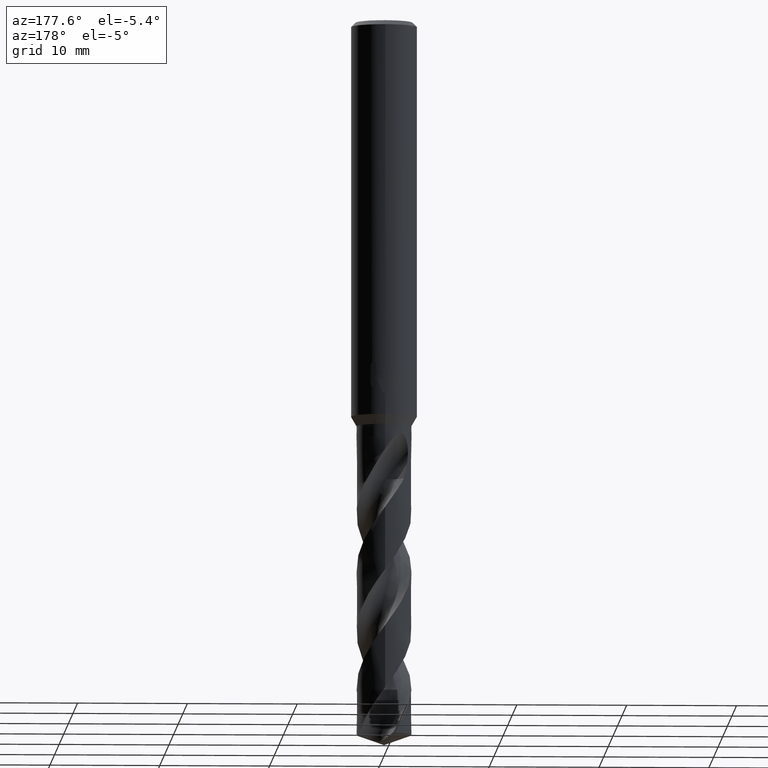
[diagram: clean part render]
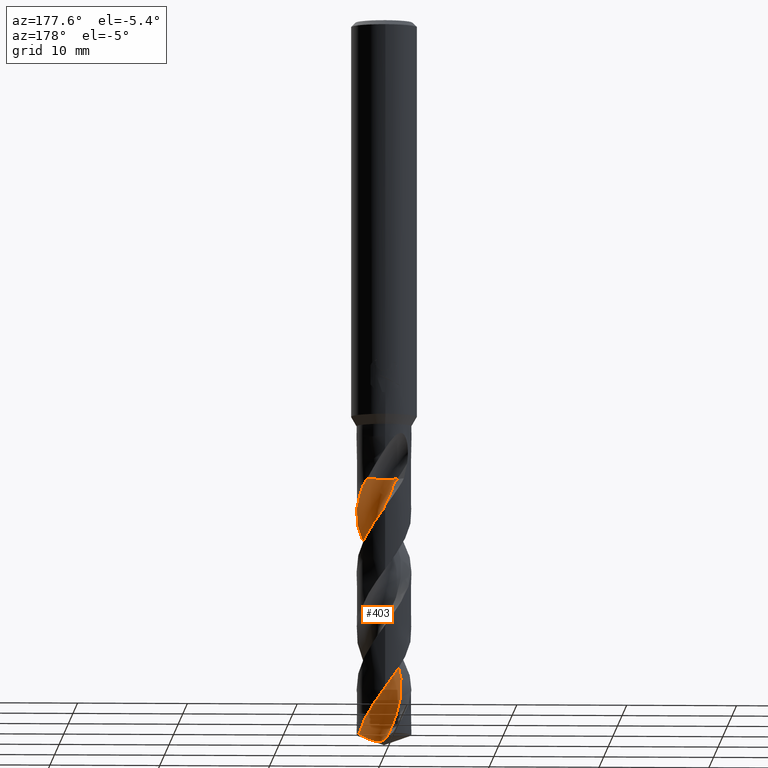
[diagram: same view with one face highlighted and labeled with its STEP entity id]
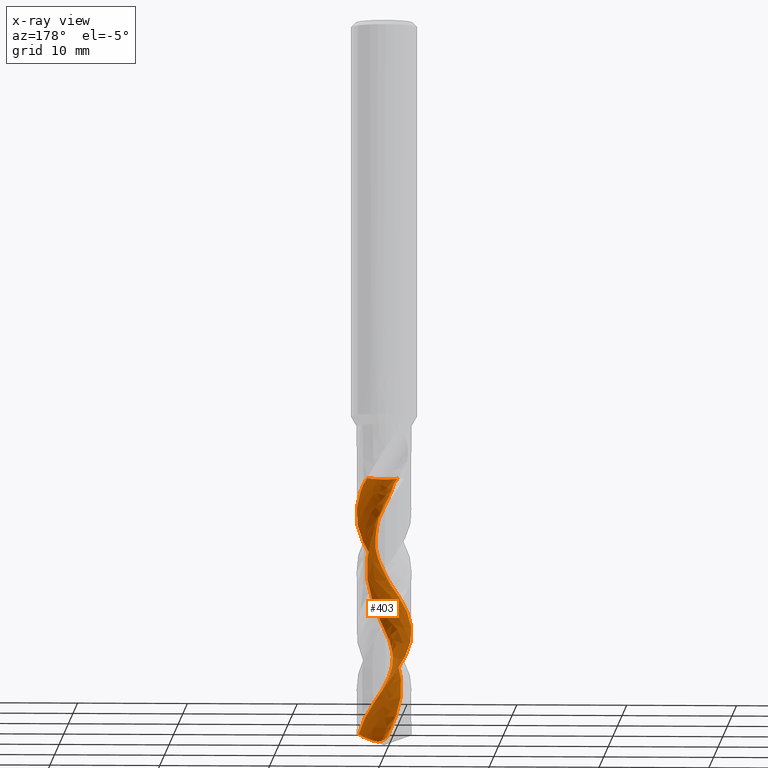
[diagram: x-ray of the same camera — body ghosted, the highlighted face saturated]
A machine part, auxiliary view. The second image highlights one B-rep face of the part: STEP entity #403.
The next image is the same camera in x-ray: the body ghosted, the highlighted face saturated — about 0% of this face is hidden behind the body in this view.
In plain terms, the highlighted face is a freeform B-spline surface patch.
Its self-contained STEP definition (entity closure, byte-faithful):
#271=EDGE_CURVE('',#305,#399,#762,.T.);
#277=VERTEX_POINT('',#768);
#281=EDGE_CURVE('',#277,#429,#772,.T.);
#305=VERTEX_POINT('',#800);
#349=EDGE_CURVE('',#399,#633,#849,.T.);
#381=EDGE_CURVE('',#619,#305,#883,.T.);
#399=VERTEX_POINT('',#902);
#403=ADVANCED_FACE('',(#906),#907,.F.);
#415=EDGE_CURVE('',#633,#553,#919,.T.);
#429=VERTEX_POINT('',#935);
#553=VERTEX_POINT('',#1072);
#569=EDGE_CURVE('',#429,#595,#1088,.T.);
#595=VERTEX_POINT('',#1116);
#609=EDGE_CURVE('',#553,#277,#1132,.T.);
#615=EDGE_CURVE('',#595,#619,#1138,.T.);
#619=VERTEX_POINT('',#1142);
#633=VERTEX_POINT('',#1158);
#762=B_SPLINE_CURVE_WITH_KNOTS('',3,(#1290,#1291,#1292,#1293,#1294,#1295,#1296,#1297,#1298,#1299,#1300,#1301,#1302,#1303,#1304,#1305,#1306,#1307,#1308,#1309,#1310,#1311,#1312,#1313,#1314,#1315,#1316,#1317,#1318,#1319,#1320,#1321,#1322,#1323,#1324,#1325,#1326,#1327,#1328,#1329,#1330,#1331,#1332,#1333,#1334,#1335,#1336,#1337,#1338,#1339,#1340,#1341,#1342,#1343,#1344),.UNSPECIFIED.,.F.,.F.,(4,1,2,1,2,2,2,1,2,1,2,1,2,1,2,1,2,1,2,1,2,1,2,1,2,1,2,1,2,1,2,1,2,2,4),(0.0,0.539576991298492,1.07915398259698,1.61873097389548,2.15830796519397,3.23746194779095,4.31661593038793,5.39576991298492,6.4749238955819,7.55407787817889,8.63323186077587,9.71238584337285,10.7915398259698,11.8706938085668,12.9498477911638,14.0290017737608,15.1081557563578,16.1873097389548,17.2664637215517,18.3456177041487,19.4247716867457,20.5039256693427,21.5830796519397,22.6622336345367,23.7413876171336,24.8205415997306,25.8996955823276,26.9788495649246,28.0580035475216,29.1371575301186,30.2163115127155,31.2954654953125,32.3746194779095,33.4537734605065,34.5329274431035),.UNSPECIFIED.);
#768=CARTESIAN_POINT('',(-1.49229272866229E-012,2.4999846378401,-60.9284538668785));
#772=B_SPLINE_CURVE_WITH_KNOTS('',3,(#1356,#1357,#1358,#1359,#1360,#1361,#1362,#1363,#1364,#1365,#1366,#1367,#1368,#1369,#1370,#1371,#1372,#1373,#1374,#1375,#1376,#1377,#1378,#1379,#1380,#1381,#1382,#1383,#1384,#1385,#1386,#1387,#1388,#1389,#1390,#1391,#1392,#1393,#1394,#1395,#1396,#1397,#1398,#1399,#1400,#1401,#1402,#1403,#1404,#1405,#1406,#1407,#1408,#1409,#1410,#1411,#1412,#1413,#1414,#1415,#1416,#1417,#1418,#1419,#1420,#1421,#1422,#1423,#1424,#1425,#1426,#1427,#1428,#1429,#1430,#1431,#1432,#1433,#1434,#1435,#1436,#1437,#1438,#1439),.UNSPECIFIED.,.F.,.F.,(4,2,2,2,2,2,2,2,2,2,2,2,2,2,2,2,2,2,2,2,2,2,2,2,2,2,2,2,2,2,2,2,2,2,2,2,2,2,2,2,2,4),(0.0,0.705339197520786,0.793382321570578,2.25138278825527,3.00462327397265,4.43627068182508,4.65154079261242,5.90010120325481,6.66712664066002,7.53589064290537,7.96607251350422,8.69509283644515,10.0914412677393,10.1967862482771,11.6549208246733,12.669538107501,13.4584254143811,14.3321507532212,15.0973158277061,16.5459662624766,17.3053546183504,18.0885905116614,18.8115249966454,19.279328148774,19.708212639708,20.6425852317231,21.1109216559262,21.5031201077526,22.7239835989881,23.578576880337,25.9301483865861,26.2469974652199,26.7142829934866,27.2288762379342,27.5732682245291,27.8937227863951,28.088743994366,28.2138346206703,28.3266994819867,28.4725834430864,28.7692788626183,29.2462642896059),.UNSPECIFIED.);
#800=CARTESIAN_POINT('',(-1.17851130426389,1.23815536573611,-41.785));
#849=B_SPLINE_CURVE_WITH_KNOTS('',3,(#1980,#1981,#1982,#1983,#1984,#1985,#1986,#1987,#1988,#1989,#1990,#1991,#1992,#1993,#1994,#1995,#1996,#1997,#1998,#1999),.UNSPECIFIED.,.F.,.F.,(4,2,2,2,2,2,2,2,2,4),(0.0,1.0344724839999,1.74160972146878,2.39322924306445,3.09657493412575,3.87282724536134,4.77123888585092,5.79154414923983,6.55356906267483,7.31725874836975),.UNSPECIFIED.);
#883=CIRCLE('',#2705,1.66666667);
#902=CARTESIAN_POINT('',(-0.215587987832938,1.56262142544753,-65.4258649143731));
#906=FACE_OUTER_BOUND('',#2797,.T.);
#907=B_SPLINE_SURFACE_WITH_KNOTS('',3,3,((#2798,#2799,#2800,#2801,#2802,#2803,#2804,#2805,#2806,#2807,#2808,#2809,#2810,#2811,#2812,#2813,#2814,#2815,#2816,#2817,#2818,#2819,#2820,#2821,#2822,#2823,#2824,#2825,#2826,#2827,#2828,#2829,#2830,#2831,#2832,#2833,#2834,#2835,#2836,#2837,#2838,#2839,#2840,#2841,#2842,#2843,#2844,#2845,#2846,#2847,#2848,#2849,#2850,#2851,#2852),(#2853,#2854,#2855,#2856,#2857,#2858,#2859,#2860,#2861,#2862,#2863,#2864,#2865,#2866,#2867,#2868,#2869,#2870,#2871,#2872,#2873,#2874,#2875,#2876,#2877,#2878,#2879,#2880,#2881,#2882,#2883,#2884,#2885,#2886,#2887,#2888,#2889,#2890,#2891,#2892,#2893,#2894,#2895,#2896,#2897,#2898,#2899,#2900,#2901,#2902,#2903,#2904,#2905,#2906,#2907),(#2908,#2909,#2910,#2911,#2912,#2913,#2914,#2915,#2916,#2917,#2918,#2919,#2920,#2921,#2922,#2923,#2924,#2925,#2926,#2927,#2928,#2929,#2930,#2931,#2932,#2933,#2934,#2935,#2936,#2937,#2938,#2939,#2940,#2941,#2942,#2943,#2944,#2945,#2946,#2947,#2948,#2949,#2950,#2951,#2952,#2953,#2954,#2955,#2956,#2957,#2958,#2959,#2960,#2961,#2962),(#2963,#2964,#2965,#2966,#2967,#2968,#2969,#2970,#2971,#2972,#2973,#2974,#2975,#2976,#2977,#2978,#2979,#2980,#2981,#2982,#2983,#2984,#2985,#2986,#2987,#2988,#2989,#2990,#2991,#2992,#2993,#2994,#2995,#2996,#2997,#2998,#2999,#3000,#3001,#3002,#3003,#3004,#3005,#3006,#3007,#3008,#3009,#3010,#3011,#3012,#3013,#3014,#3015,#3016,#3017),(#3018,#3019,#3020,#3021,#3022,#3023,#3024,#3025,#3026,#3027,#3028,#3029,#3030,#3031,#3032,#3033,#3034,#3035,#3036,#3037,#3038,#3039,#3040,#3041,#3042,#3043,#3044,#3045,#3046,#3047,#3048,#3049,#3050,#3051,#3052,#3053,#3054,#3055,#3056,#3057,#3058,#3059,#3060,#3061,#3062,#3063,#3064,#3065,#3066,#3067,#3068,#3069,#3070,#3071,#3072),(#3073,#3074,#3075,#3076,#3077,#3078,#3079,#3080,#3081,#3082,#3083,#3084,#3085,#3086,#3087,#3088,#3089,#3090,#3091,#3092,#3093,#3094,#3095,#3096,#3097,#3098,#3099,#3100,#3101,#3102,#3103,#3104,#3105,#3106,#3107,#3108,#3109,#3110,#3111,#3112,#3113,#3114,#3115,#3116,#3117,#3118,#3119,#3120,#3121,#3122,#3123,#3124,#3125,#3126,#3127),(#3128,#3129,#3130,#3131,#3132,#3133,#3134,#3135,#3136,#3137,#3138,#3139,#3140,#3141,#3142,#3143,#3144,#3145,#3146,#3147,#3148,#3149,#3150,#3151,#3152,#3153,#3154,#3155,#3156,#3157,#3158,#3159,#3160,#3161,#3162,#3163,#3164,#3165,#3166,#3167,#3168,#3169,#3170,#3171,#3172,#3173,#3174,#3175,#3176,#3177,#3178,#3179,#3180,#3181,#3182),(#3183,#3184,#3185,#3186,#3187,#3188,#3189,#3190,#3191,#3192,#3193,#3194,#3195,#3196,#3197,#3198,#3199,#3200,#3201,#3202,#3203,#3204,#3205,#3206,#3207,#3208,#3209,#3210,#3211,#3212,#3213,#3214,#3215,#3216,#3217,#3218,#3219,#3220,#3221,#3222,#3223,#3224,#3225,#3226,#3227,#3228,#3229,#3230,#3231,#3232,#3233,#3234,#3235,#3236,#3237),(#3238,#3239,#3240,#3241,#3242,#3243,#3244,#3245,#3246,#3247,#3248,#3249,#3250,#3251,#3252,#3253,#3254,#3255,#3256,#3257,#3258,#3259,#3260,#3261,#3262,#3263,#3264,#3265,#3266,#3267,#3268,#3269,#3270,#3271,#3272,#3273,#3274,#3275,#3276,#3277,#3278,#3279,#3280,#3281,#3282,#3283,#3284,#3285,#3286,#3287,#3288,#3289,#3290,#3291,#3292),(#3293,#3294,#3295,#3296,#3297,#3298,#3299,#3300,#3301,#3302,#3303,#3304,#3305,#3306,#3307,#3308,#3309,#3310,#3311,#3312,#3313,#3314,#3315,#3316,#3317,#3318,#3319,#3320,#3321,#3322,#3323,#3324,#3325,#3326,#3327,#3328,#3329,#3330,#3331,#3332,#3333,#3334,#3335,#3336,#3337,#3338,#3339,#3340,#3341,#3342,#3343,#3344,#3345,#3346,#3347),(#3348,#3349,#3350,#3351,#3352,#3353,#3354,#3355,#3356,#3357,#3358,#3359,#3360,#3361,#3362,#3363,#3364,#3365,#3366,#3367,#3368,#3369,#3370,#3371,#3372,#3373,#3374,#3375,#3376,#3377,#3378,#3379,#3380,#3381,#3382,#3383,#3384,#3385,#3386,#3387,#3388,#3389,#3390,#3391,#3392,#3393,#3394,#3395,#3396,#3397,#3398,#3399,#3400,#3401,#3402)),.UNSPECIFIED.,.F.,.F.,.F.,(4,1,1,1,1,1,1,1,4),(4,1,2,1,2,2,2,1,2,1,2,1,2,1,2,1,2,1,2,1,2,1,2,1,2,1,2,1,2,1,2,1,2,2,4),(4.69448696786704E-017,0.392701820313444,0.785403640626888,1.17810546094033,1.57080728125378,1.96350910156722,2.35621092188066,2.74891274219411,3.14161456250755),(0.0,0.539576991298492,1.07915398259698,1.61873097389548,2.15830796519397,3.23746194779095,4.31661593038793,5.39576991298492,6.4749238955819,7.55407787817889,8.63323186077587,9.71238584337285,10.7915398259698,11.8706938085668,12.9498477911638,14.0290017737608,15.1081557563578,16.1873097389548,17.2664637215517,18.3456177041487,19.4247716867457,20.5039256693427,21.5830796519397,22.6622336345367,23.7413876171336,24.8205415997306,25.8996955823276,26.9788495649246,28.0580035475216,29.1371575301186,30.2163115127155,31.2954654953125,32.3746194779095,33.4537734605065,34.5329274431035),.UNSPECIFIED.);
#919=B_SPLINE_CURVE_WITH_KNOTS('',3,(#3426,#3427,#3428,#3429,#3430,#3431,#3432,#3433,#3434,#3435,#3436,#3437,#3438,#3439,#3440,#3441,#3442,#3443,#3444,#3445),.UNSPECIFIED.,.F.,.F.,(4,2,2,2,2,2,2,2,2,4),(0.0,1.0344724839999,1.74160972146878,2.39322924306445,3.09657493412575,3.87282724536134,4.77123888585092,5.79154414923983,6.55356906267483,7.31725874836975),.UNSPECIFIED.);
#935=CARTESIAN_POINT('',(4.41179954747735E-014,-2.49994476385777,-50.1265623821918));
#1072=CARTESIAN_POINT('',(2.33886570378172,0.883010316855716,-65.0900744143345));
#1088=B_SPLINE_CURVE_WITH_KNOTS('',3,(#4122,#4123,#4124,#4125,#4126,#4127,#4128,#4129,#4130,#4131,#4132,#4133,#4134,#4135,#4136,#4137,#4138,#4139,#4140,#4141,#4142,#4143,#4144,#4145,#4146,#4147,#4148,#4149,#4150,#4151,#4152,#4153,#4154,#4155,#4156,#4157,#4158,#4159,#4160,#4161,#4162,#4163,#4164,#4165,#4166,#4167,#4168,#4169,#4170,#4171,#4172,#4173,#4174,#4175,#4176,#4177,#4178,#4179,#4180,#4181,#4182,#4183,#4184,#4185,#4186,#4187,#4188,#4189,#4190,#4191,#4192,#4193,#4194,#4195,#4196,#4197,#4198,#4199,#4200,#4201,#4202,#4203,#4204,#4205),.UNSPECIFIED.,.F.,.F.,(4,2,2,2,2,2,2,2,2,2,2,2,2,2,2,2,2,2,2,2,2,2,2,2,2,2,2,2,2,2,2,2,2,2,2,2,2,2,2,2,2,4),(0.0,0.705339197520786,0.793382321570578,2.25138278825527,3.00462327397265,4.43627068182508,4.65154079261242,5.90010120325481,6.66712664066002,7.53589064290537,7.96607251350422,8.69509283644515,10.0914412677393,10.1967862482771,11.6549208246733,12.669538107501,13.4584254143811,14.3321507532212,15.0973158277061,16.5459662624766,17.3053546183504,18.0885905116614,18.8115249966454,19.279328148774,19.708212639708,20.6425852317231,21.1109216559262,21.5031201077526,22.7239835989881,23.578576880337,25.9301483865861,26.2469974652199,26.7142829934866,27.2288762379342,27.5732682245291,27.8937227863951,28.088743994366,28.2138346206703,28.3266994819867,28.4725834430864,28.7692788626183,29.2462642896059),.UNSPECIFIED.);
#1116=CARTESIAN_POINT('',(1.59301279645432,1.9266240155434,-41.785));
#1132=B_SPLINE_CURVE_WITH_KNOTS('',3,(#4599,#4600,#4601,#4602,#4603,#4604,#4605,#4606,#4607,#4608,#4609,#4610,#4611,#4612,#4613,#4614,#4615,#4616,#4617,#4618,#4619,#4620,#4621,#4622,#4623,#4624,#4625,#4626,#4627,#4628,#4629,#4630,#4631,#4632,#4633,#4634,#4635,#4636,#4637,#4638,#4639,#4640,#4641,#4642,#4643,#4644,#4645,#4646,#4647,#4648,#4649,#4650,#4651,#4652,#4653,#4654,#4655,#4656,#4657,#4658,#4659,#4660,#4661,#4662,#4663,#4664,#4665,#4666,#4667,#4668,#4669,#4670,#4671,#4672,#4673,#4674,#4675,#4676,#4677,#4678,#4679,#4680,#4681,#4682),.UNSPECIFIED.,.F.,.F.,(4,2,2,2,2,2,2,2,2,2,2,2,2,2,2,2,2,2,2,2,2,2,2,2,2,2,2,2,2,2,2,2,2,2,2,2,2,2,2,2,2,4),(0.0,0.705339197520786,0.793382321570578,2.25138278825527,3.00462327397265,4.43627068182508,4.65154079261242,5.90010120325481,6.66712664066002,7.53589064290537,7.96607251350422,8.69509283644515,10.0914412677393,10.1967862482771,11.6549208246733,12.669538107501,13.4584254143811,14.3321507532212,15.0973158277061,16.5459662624766,17.3053546183504,18.0885905116614,18.8115249966454,19.279328148774,19.708212639708,20.6425852317231,21.1109216559262,21.5031201077526,22.7239835989881,23.578576880337,25.9301483865861,26.2469974652199,26.7142829934866,27.2288762379342,27.5732682245291,27.8937227863951,28.088743994366,28.2138346206703,28.3266994819867,28.4725834430864,28.7692788626183,29.2462642896059),.UNSPECIFIED.);
#1138=CIRCLE('',#4689,1.66666667);
#1142=CARTESIAN_POINT('',(-0.207397086478386,0.762943119617117,-41.785));
#1158=CARTESIAN_POINT('',(1.09368665589108E-010,1.15466543234202,-65.5797361520914));
#1290=CARTESIAN_POINT('',(-1.17851130426389,1.23815536573611,-41.785));
#1291=CARTESIAN_POINT('',(-1.05627862679658,1.23397218828648,-41.911020371475));
#1292=CARTESIAN_POINT('',(-0.861162927426005,1.24945218257807,-42.1617878795134));
#1293=CARTESIAN_POINT('',(-0.764366729168413,1.30955973524586,-42.412370576367));
#1294=CARTESIAN_POINT('',(-0.707526167067259,1.39836616529507,-42.6664059605414));
#1295=CARTESIAN_POINT('',(-0.628058073089371,1.47128603912809,-42.9209279647623));
#1296=CARTESIAN_POINT('',(-0.516070494683171,1.50820003910926,-43.1736715581993));
#1297=CARTESIAN_POINT('',(-0.333758352910321,1.53834605510744,-43.5499660455936));
#1298=CARTESIAN_POINT('',(-0.217722060410166,1.55439078098339,-43.8012623969036));
#1299=CARTESIAN_POINT('',(0.00732143788183884,1.58025736243127,-44.3073223334696));
#1300=CARTESIAN_POINT('',(0.123792732668771,1.57541836887552,-44.5600020618195));
#1301=CARTESIAN_POINT('',(0.351642558559027,1.54250287492653,-45.0641871453161));
#1302=CARTESIAN_POINT('',(0.577217824679141,1.47688290416968,-45.5686976847677));
#1303=CARTESIAN_POINT('',(0.782474194852852,1.3668695964226,-46.0729163534359));
#1304=CARTESIAN_POINT('',(0.975302655785693,1.24488189469051,-46.5777112080223));
#1305=CARTESIAN_POINT('',(1.15225776824751,1.09161587502741,-47.0827776961466));
#1306=CARTESIAN_POINT('',(1.29088421967666,0.903849290117719,-47.5870836110609));
#1307=CARTESIAN_POINT('',(1.41287396309209,0.710526863317679,-48.0916278768704));
#1308=CARTESIAN_POINT('',(1.50743343471892,0.496284169782995,-48.5965035380176));
#1309=CARTESIAN_POINT('',(1.55297991090848,0.267525159948018,-49.100794578302));
#1310=CARTESIAN_POINT('',(1.58100055612458,0.0407091164725956,-49.605414669297));
#1311=CARTESIAN_POINT('',(1.57519553065058,-0.193424373281075,-50.110341556886));
#1312=CARTESIAN_POINT('',(1.51884349332742,-0.419803233695102,-50.6146332570459));
#1313=CARTESIAN_POINT('',(1.44754881196351,-0.636939187265903,-51.1192345138966));
#1314=CARTESIAN_POINT('',(1.34255356369148,-0.84627554570597,-51.624150042378));
#1315=CARTESIAN_POINT('',(1.19511587021014,-1.02705638238556,-52.1284429105988));
#1316=CARTESIAN_POINT('',(1.0380712932749,-1.19309849798444,-52.633048912328));
#1317=CARTESIAN_POINT('',(0.8538660618141,-1.33772350675912,-53.1379663977328));
#1318=CARTESIAN_POINT('',(0.643452667343268,-1.438439635498,-53.6422581649298));
#1319=CARTESIAN_POINT('',(0.430637652347315,-1.52173882814419,-54.1468632160884));
#1320=CARTESIAN_POINT('',(0.202371439543241,-1.5740828221706,-54.6517810661938));
#1321=CARTESIAN_POINT('',(-0.0309021980536672,-1.57551959407286,-55.1560732864932));
#1322=CARTESIAN_POINT('',(-0.25892677799835,-1.56017018453937,-55.6606776380244));
#1323=CARTESIAN_POINT('',(-0.487735451921688,-1.51023373248166,-56.1655946181567));
#1324=CARTESIAN_POINT('',(-0.699377361074484,-1.41211096240761,-56.6698860770074));
#1325=CARTESIAN_POINT('',(-0.899116100642086,-1.30103945172495,-57.1744897935383));
#1326=CARTESIAN_POINT('',(-1.08482466901184,-1.15835279038107,-57.6794078429192));
#1327=CARTESIAN_POINT('',(-1.234471191329,-0.979394241650771,-58.1837032617882));
#1328=CARTESIAN_POINT('',(-1.36782986749308,-0.793789407324764,-58.6883117131272));
#1329=CARTESIAN_POINT('',(-1.47502063438949,-0.585559407735382,-59.1932254482684));
#1330=CARTESIAN_POINT('',(-1.53415075855435,-0.359910398800639,-59.6975072421454));
#1331=CARTESIAN_POINT('',(-1.57574092912361,-0.135206826333492,-60.2021031768947));
#1332=CARTESIAN_POINT('',(-1.58399910006578,0.0988295944845779,-60.7070355149277));
#1333=CARTESIAN_POINT('',(-1.5412143604749,0.328202483751154,-61.2113587041748));
#1334=CARTESIAN_POINT('',(-1.4828623948537,0.549249083566627,-61.7159842890184));
#1335=CARTESIAN_POINT('',(-1.39057201878919,0.764488900267949,-62.2208452584778));
#1336=CARTESIAN_POINT('',(-1.25468804273233,0.953823983822994,-62.7250618507578));
#1337=CARTESIAN_POINT('',(-1.10851540789694,1.12914056908775,-63.2296538477847));
#1338=CARTESIAN_POINT('',(-0.933091915530726,1.28449426651662,-63.7347806395635));
#1339=CARTESIAN_POINT('',(-0.727520283758889,1.3966057799367,-64.2392381825144));
#1340=CARTESIAN_POINT('',(-0.518381382252203,1.49100049089007,-64.7437430772867));
#1341=CARTESIAN_POINT('',(-0.407401266660294,1.52511657075322,-64.9957903420706));
#1342=CARTESIAN_POINT('',(-0.183853455318953,1.57272692451887,-65.4997692457041));
#1343=CARTESIAN_POINT('',(-0.0651203257169097,1.57732122797978,-65.7521535585089));
#1344=CARTESIAN_POINT('',(0.0536111652858873,1.56587867990879,-66.0041613994536));
#1356=CARTESIAN_POINT('',(2.33886570378173,0.883010316855709,-65.0900744143345));
#1357=CARTESIAN_POINT('',(2.29018651938241,1.01194688173756,-64.8995912051756));
#1358=CARTESIAN_POINT('',(2.23092460490224,1.13665062986234,-64.7100951293949));
#1359=CARTESIAN_POINT('',(2.15302469915512,1.27073593422715,-64.4959070597195));
#1360=CARTESIAN_POINT('',(2.1442207592548,1.28553609939877,-64.472111254221));
#1361=CARTESIAN_POINT('',(1.98678778484872,1.54406599651903,-64.0543117836237));
#1362=CARTESIAN_POINT('',(1.79765498664675,1.76071742994334,-63.6691206230355));
#1363=CARTESIAN_POINT('',(1.46106991957155,2.03397333101309,-63.0729881137587));
#1364=CARTESIAN_POINT('',(1.3387134986244,2.11648750832682,-62.8683680680261));
#1365=CARTESIAN_POINT('',(0.964657451981324,2.32332222494383,-62.2793320910932));
#1366=CARTESIAN_POINT('',(0.69897325682646,2.41647387334835,-61.9016570737109));
#1367=CARTESIAN_POINT('',(0.382407185479408,2.47092301410859,-61.4573899510818));
#1368=CARTESIAN_POINT('',(0.340867709908535,2.47699761568448,-61.3992147453919));
#1369=CARTESIAN_POINT('',(0.0563478475743394,2.5112739965807,-61.003299264333));
#1370=CARTESIAN_POINT('',(-0.189608343135859,2.50481682207799,-60.6711720264274));
#1371=CARTESIAN_POINT('',(-0.579565260537321,2.43653634270258,-60.1276073745795));
#1372=CARTESIAN_POINT('',(-0.724948518564298,2.39726021017557,-59.9193839674674));
#1373=CARTESIAN_POINT('',(-1.02506863263222,2.28648165309439,-59.4782613980477));
#1374=CARTESIAN_POINT('',(-1.17831992412939,2.2114564016881,-59.2459558974683));
#1375=CARTESIAN_POINT('',(-1.39467602971787,2.07651048743198,-58.8965223679479));
#1376=CARTESIAN_POINT('',(-1.46390664603325,2.02828694439699,-58.7809489062009));
#1377=CARTESIAN_POINT('',(-1.64327822800571,1.8894094326415,-58.4685922413044));
#1378=CARTESIAN_POINT('',(-1.7483581524877,1.79262949092385,-58.2708240246628));
#1379=CARTESIAN_POINT('',(-2.02940128095464,1.4853431575734,-57.6979776913192));
#1380=CARTESIAN_POINT('',(-2.17925435306539,1.25493433466018,-57.3290026389153));
#1381=CARTESIAN_POINT('',(-2.29705520209781,0.986817472755293,-56.9235364768892));
#1382=CARTESIAN_POINT('',(-2.30507952916041,0.967926413946162,-56.8950832633762));
#1383=CARTESIAN_POINT('',(-2.42113010422204,0.685044448277029,-56.4719082265747));
#1384=CARTESIAN_POINT('',(-2.48356100727685,0.404417834670134,-56.0859939424185));
#1385=CARTESIAN_POINT('',(-2.50659506717053,-0.0800407247237364,-55.4189373381309));
#1386=CARTESIAN_POINT('',(-2.49229892214999,-0.279349955401422,-55.1433153216711));
#1387=CARTESIAN_POINT('',(-2.42492042760174,-0.627386078063755,-54.6568579728654));
#1388=CARTESIAN_POINT('',(-2.38135850488306,-0.776487814845948,-54.4454467138055));
#1389=CARTESIAN_POINT('',(-2.26114064723096,-1.08003494077674,-53.9968472247886));
#1390=CARTESIAN_POINT('',(-2.18185072072324,-1.23235498120629,-53.7593969954083));
#1391=CARTESIAN_POINT('',(-2.00494937631542,-1.50083101470481,-53.3171586147428));
#1392=CARTESIAN_POINT('',(-1.91116266766739,-1.61859837190658,-53.112044618715));
#1393=CARTESIAN_POINT('',(-1.61047048276792,-1.93319634496103,-52.5154743402466));
#1394=CARTESIAN_POINT('',(-1.38013598735321,-2.10382408476296,-52.1229823365801));
#1395=CARTESIAN_POINT('',(-0.99260590740174,-2.29929685617157,-51.5279808320998));
#1396=CARTESIAN_POINT('',(-0.853743195249389,-2.35436476757688,-51.3245139937356));
#1397=CARTESIAN_POINT('',(-0.563799069806127,-2.4403786197949,-50.9082819896367));
#1398=CARTESIAN_POINT('',(-0.412981631343818,-2.47038560908166,-50.6954791630184));
#1399=CARTESIAN_POINT('',(-0.11901365907579,-2.50113763149859,-50.2890201030382));
#1400=CARTESIAN_POINT('',(0.0232164944698478,-2.50387566829468,-50.0950844062439));
#1401=CARTESIAN_POINT('',(0.256853705997476,-2.48841426397878,-49.77417228586));
#1402=CARTESIAN_POINT('',(0.348055349974197,-2.47729039331593,-49.6482845247746));
#1403=CARTESIAN_POINT('',(0.520963507443,-2.44650035895448,-49.4061104721306));
#1404=CARTESIAN_POINT('',(0.602685130837747,-2.42765676547963,-49.2898050791214));
#1405=CARTESIAN_POINT('',(0.859197154920285,-2.35475865633735,-48.9216903022311));
#1406=CARTESIAN_POINT('',(1.02934264093602,-2.28557387656802,-48.6717864102814));
#1407=CARTESIAN_POINT('',(1.27165135869698,-2.15431164505599,-48.2940967555422));
#1408=CARTESIAN_POINT('',(1.34993058627535,-2.10612955998195,-48.1681927189443));
#1409=CARTESIAN_POINT('',(1.4883385472369,-2.01008139786983,-47.9360550917751));
#1410=CARTESIAN_POINT('',(1.5492123002633,-1.96353410862559,-47.8298460469216));
#1411=CARTESIAN_POINT('',(1.78996870490875,-1.7613372557221,-47.395318995317));
#1412=CARTESIAN_POINT('',(1.9496909545453,-1.58285486599002,-47.0717920481496));
#1413=CARTESIAN_POINT('',(2.17448398382074,-1.24468217331734,-46.5144982738418));
#1414=CARTESIAN_POINT('',(2.2526019737145,-1.0968730466019,-46.2833884371949));
#1415=CARTESIAN_POINT('',(2.48803906064716,-0.518638114496798,-45.4222822357989));
#1416=CARTESIAN_POINT('',(2.54062258923928,-0.0555729162293293,-44.8112583819243));
#1417=CARTESIAN_POINT('',(2.45880234864903,0.455723352451119,-44.0945173006001));
#1418=CARTESIAN_POINT('',(2.4468973412289,0.515831332644643,-44.0092168394315));
#1419=CARTESIAN_POINT('',(2.41187184718078,0.663850594871653,-43.7987508428433));
#1420=CARTESIAN_POINT('',(2.38608501919556,0.751429651911781,-43.6736065661477));
#1421=CARTESIAN_POINT('',(2.32136151183696,0.933338264774399,-43.4119001796399));
#1422=CARTESIAN_POINT('',(2.28306880789496,1.02315747934894,-43.2833104282126));
#1423=CARTESIAN_POINT('',(2.21015576180881,1.17009838148852,-43.0614027716611));
#1424=CARTESIAN_POINT('',(2.17906545765208,1.22691164671473,-42.9722679094293));
#1425=CARTESIAN_POINT('',(2.11611124955793,1.33235334070159,-42.7976338622386));
#1426=CARTESIAN_POINT('',(2.08469135568577,1.38087800673129,-42.7129642337649));
#1427=CARTESIAN_POINT('',(2.03294649755781,1.45529685352343,-42.5744180418892));
#1428=CARTESIAN_POINT('',(2.02076851950718,1.47204102932389,-42.5409648806847));
#1429=CARTESIAN_POINT('',(1.99254880361841,1.50985818786231,-42.4690373933075));
#1430=CARTESIAN_POINT('',(1.9811666898461,1.52477099155072,-42.4411907208433));
#1431=CARTESIAN_POINT('',(1.95874872343735,1.55344212704166,-42.3886208636849));
#1432=CARTESIAN_POINT('',(1.94780718237226,1.56714575363147,-42.3639042100505));
#1433=CARTESIAN_POINT('',(1.92194963662612,1.5988184779648,-42.3076760456658));
#1434=CARTESIAN_POINT('',(1.9068374202197,1.61682592622175,-42.2763575164937));
#1435=CARTESIAN_POINT('',(1.85921428427484,1.671909772006,-42.1823545253478));
#1436=CARTESIAN_POINT('',(1.82505699022864,1.70924079166424,-42.1210876010134));
#1437=CARTESIAN_POINT('',(1.72931248242326,1.80725969585964,-41.9648759997831));
#1438=CARTESIAN_POINT('',(1.66442739678851,1.86757587951774,-41.8733433334085));
#1439=CARTESIAN_POINT('',(1.59301279645432,1.9266240155434,-41.785));
#1980=CARTESIAN_POINT('',(-0.215587987832454,1.56262142544743,-65.4258649143736));
#1981=CARTESIAN_POINT('',(-0.0862869912495372,1.2640131410626,-65.539961570848));
#1982=CARTESIAN_POINT('',(0.0873291613036999,1.00289715197556,-65.6422904140819));
#1983=CARTESIAN_POINT('',(0.368679845941261,0.674354749670177,-65.7255781959841));
#1984=CARTESIAN_POINT('',(0.478691519204545,0.571122046841054,-65.7334150583911));
#1985=CARTESIAN_POINT('',(0.702337567699191,0.413324286448185,-65.7069875993383));
#1986=CARTESIAN_POINT('',(0.815922678787414,0.356456373829088,-65.6770203858839));
#1987=CARTESIAN_POINT('',(1.06658630150118,0.281481417757528,-65.599532488032));
#1988=CARTESIAN_POINT('',(1.20785233499806,0.265826540867913,-65.5498963531255));
#1989=CARTESIAN_POINT('',(1.51907354443789,0.294794565890554,-65.4368260798074));
#1990=CARTESIAN_POINT('',(1.67725420162715,0.344558722261319,-65.37697306856));
#1991=CARTESIAN_POINT('',(1.99156648025383,0.511407591852802,-65.2518259507661));
#1992=CARTESIAN_POINT('',(2.14066949548635,0.636126623677625,-65.1880140802957));
#1993=CARTESIAN_POINT('',(2.40492094297461,0.955566871552528,-65.059035827783));
#1994=CARTESIAN_POINT('',(2.51033657698774,1.1544108511567,-64.9959562969582));
#1995=CARTESIAN_POINT('',(2.62831531940194,1.52750345213611,-64.8943713731129));
#1996=CARTESIAN_POINT('',(2.65730505993254,1.69414724000234,-64.854014418428));
#1997=CARTESIAN_POINT('',(2.67264050172781,2.03183269744652,-64.7790245442098));
#1998=CARTESIAN_POINT('',(2.65886627413597,2.20216270279891,-64.7445681535049));
#1999=CARTESIAN_POINT('',(2.62436457782964,2.36911598758548,-64.7131708960016));
#2705=AXIS2_PLACEMENT_3D('',#5313,#5314,#5315);
#2797=EDGE_LOOP('',(#5329,#5330,#5331,#5332,#5333,#5334,#5335,#5336));
#2798=CARTESIAN_POINT('',(1.17851130426389,3.59517797426389,-41.785));
#2799=CARTESIAN_POINT('',(1.30695716996838,3.58478159946871,-41.9108611324312));
#2800=CARTESIAN_POINT('',(1.5667011359828,3.53730130245813,-42.1647615006062));
#2801=CARTESIAN_POINT('',(1.82225373348265,3.41788071945987,-42.4194217852432));
#2802=CARTESIAN_POINT('',(2.06543964136638,3.25478550513675,-42.6700216395006));
#2803=CARTESIAN_POINT('',(2.29832305629693,3.08358753992229,-42.9198753686054));
#2804=CARTESIAN_POINT('',(2.51433071170396,2.90115858063896,-43.1715678545318));
#2805=CARTESIAN_POINT('',(2.82666451346926,2.62140834351525,-43.5523398075945));
#2806=CARTESIAN_POINT('',(3.01378397858408,2.40982181554858,-43.8058118735485));
#2807=CARTESIAN_POINT('',(3.33060835548017,1.94100776292573,-44.3088251381694));
#2808=CARTESIAN_POINT('',(3.46424035911075,1.69033809963355,-44.5606947351333));
#2809=CARTESIAN_POINT('',(3.67269516310013,1.16518235771806,-45.0657565001836));
#2810=CARTESIAN_POINT('',(3.82539016534399,0.619664629580317,-45.570465003298));
#2811=CARTESIAN_POINT('',(3.85627377728061,0.0535183592076463,-46.0755072341383));
#2812=CARTESIAN_POINT('',(3.81983182088071,-0.510611370563193,-46.5799028791762));
#2813=CARTESIAN_POINT('',(3.72451251127833,-1.06931732985186,-47.0839922312946));
#2814=CARTESIAN_POINT('',(3.51107220105065,-1.59488736230971,-47.5889293723906));
#2815=CARTESIAN_POINT('',(3.23787228711554,-2.08987771544574,-48.0936009382649));
#2816=CARTESIAN_POINT('',(2.91362438084855,-2.55474651552506,-48.5979029654244));
#2817=CARTESIAN_POINT('',(2.49656297817009,-2.93912035943812,-49.1028587642984));
#2818=CARTESIAN_POINT('',(2.03849271488215,-3.27042228951654,-49.6074466973967));
#2819=CARTESIAN_POINT('',(1.5470809341957,-3.55278402399307,-50.111691630466));
#2820=CARTESIAN_POINT('',(1.00597648922918,-3.72281709134456,-50.616646146684));
#2821=CARTESIAN_POINT('',(0.4503783921177,-3.82732315574528,-51.1212548366976));
#2822=CARTESIAN_POINT('',(-0.114516854068159,-3.87333035601326,-51.6255124322227));
#2823=CARTESIAN_POINT('',(-0.676481171294025,-3.79654232931616,-52.1304657870685));
#2824=CARTESIAN_POINT('',(-1.22363371494738,-3.65431445760138,-52.6350692345857));
#2825=CARTESIAN_POINT('',(-1.75427228817234,-3.45520483016489,-53.1393246182998));
#2826=CARTESIAN_POINT('',(-2.22992997295845,-3.14624751910736,-53.6442791737322));
#2827=CARTESIAN_POINT('',(-2.66429429089043,-2.78439375609489,-54.1488837339439));
#2828=CARTESIAN_POINT('',(-3.05947487522749,-2.37812108942379,-54.6531388408358));
#2829=CARTESIAN_POINT('',(-3.35810526373697,-1.8959132598473,-55.1580928647547));
#2830=CARTESIAN_POINT('',(-3.59684073351728,-1.38345459605727,-55.6626979452428));
#2831=CARTESIAN_POINT('',(-3.78120018171266,-0.847512308798171,-56.1669535266989));
#2832=CARTESIAN_POINT('',(-3.84585896793818,-0.284023224932607,-56.6719085320016));
#2833=CARTESIAN_POINT('',(-3.84344510165629,0.281307161549033,-57.1765153171551));
#2834=CARTESIAN_POINT('',(-3.78183166156228,0.844710416257239,-57.6807715631152));
#2835=CARTESIAN_POINT('',(-3.60019006787897,1.38202532583031,-58.1857216458985));
#2836=CARTESIAN_POINT('',(-3.35708677625552,1.89242555206124,-58.6903194202672));
#2837=CARTESIAN_POINT('',(-3.06124987770956,2.37585785775059,-59.194573545473));
#2838=CARTESIAN_POINT('',(-2.66793372033444,2.78452612606876,-59.6995407081208));
#2839=CARTESIAN_POINT('',(-2.2304766194981,3.14263263674403,-60.204166346665));
#2840=CARTESIAN_POINT('',(-1.7568212361599,3.45385803550506,-60.7084255822509));
#2841=CARTESIAN_POINT('',(-1.22688765967746,3.65597596100799,-61.2133396989748));
#2842=CARTESIAN_POINT('',(-0.678579030937223,3.79362450189888,-61.7178806924013));
#2843=CARTESIAN_POINT('',(-0.117420213898469,3.87341423507837,-62.2221234522981));
#2844=CARTESIAN_POINT('',(0.44822193114008,3.83015144945298,-62.7271873433179));
#2845=CARTESIAN_POINT('',(1.00294613403023,3.72044466056271,-63.2319681858217));
#2846=CARTESIAN_POINT('',(1.5444136910454,3.55322423179738,-63.7362878306939));
#2847=CARTESIAN_POINT('',(2.0377761720211,3.27417516597488,-64.2410644989286));
#2848=CARTESIAN_POINT('',(2.49344091956844,2.94049161148387,-64.74536098465));
#2849=CARTESIAN_POINT('',(2.70295089898492,2.74920220471053,-64.9975249277711));
#2850=CARTESIAN_POINT('',(3.07343279360541,2.32287789225465,-65.5019689606948));
#2851=CARTESIAN_POINT('',(3.23638785817304,2.09246832433493,-65.7537432770885));
#2852=CARTESIAN_POINT('',(3.37490081277121,1.84897420960496,-66.0059370106336));
#2853=CARTESIAN_POINT('',(1.33277312543475,3.44090410614985,-41.7849999999999));
#2854=CARTESIAN_POINT('',(1.46081231890334,3.43010109257631,-41.9108494536579));
#2855=CARTESIAN_POINT('',(1.7164354234572,3.37839101853882,-42.1649795864314));
#2856=CARTESIAN_POINT('',(1.96023648859996,3.24857969472033,-42.4199389211305));
#2857=CARTESIAN_POINT('',(2.18693555507805,3.07328922112328,-42.6702868139609));
#2858=CARTESIAN_POINT('',(2.40384132669381,2.89205093703303,-42.919798171107));
#2859=CARTESIAN_POINT('',(2.60549248009261,2.70281432874642,-43.1714135684859));
#2860=CARTESIAN_POINT('',(2.89754326100233,2.41455496158002,-43.5525139000006));
#2861=CARTESIAN_POINT('',(3.06976353742991,2.19831653508663,-43.8061455319352));
#2862=CARTESIAN_POINT('',(3.35421108478144,1.7234967199172,-44.3089353545468));
#2863=CARTESIAN_POINT('',(3.47175334479,1.47170449402659,-44.5607455373664));
#2864=CARTESIAN_POINT('',(3.64799088661507,0.947819431901169,-45.065871595265));
#2865=CARTESIAN_POINT('',(3.76927660394596,0.407072972671465,-45.5705946179178));
#2866=CARTESIAN_POINT('',(3.77030655586495,-0.147659325240653,-46.07569725235));
#2867=CARTESIAN_POINT('',(3.70492690407864,-0.696782113858999,-46.5800636136746));
#2868=CARTESIAN_POINT('',(3.58307218716745,-1.23766664094809,-47.0840813064215));
#2869=CARTESIAN_POINT('',(3.34752341085264,-1.74019289188382,-47.5890647414339));
#2870=CARTESIAN_POINT('',(3.05458025599044,-2.20931717569924,-48.0937456419623));
#2871=CARTESIAN_POINT('',(2.71392988959366,-2.64677430628299,-48.598005599849));
#2872=CARTESIAN_POINT('',(2.28668462997988,-3.00086986627007,-49.1030101519994));
#2873=CARTESIAN_POINT('',(1.82177698767365,-3.30035673983828,-49.6075957263411));
#2874=CARTESIAN_POINT('',(1.32720990327226,-3.55093529221365,-50.1117906467616));
#2875=CARTESIAN_POINT('',(0.789794564333878,-3.68924126371384,-50.6167937687087));
#2876=CARTESIAN_POINT('',(0.241569379152501,-3.76204981213016,-51.1214030107718));
#2877=CARTESIAN_POINT('',(-0.312634766783478,-3.77795688928375,-51.6256123490944));
#2878=CARTESIAN_POINT('',(-0.857740023867125,-3.67403858753448,-52.1306141433247));
#2879=CARTESIAN_POINT('',(-1.38471519826242,-3.50627883088002,-52.6352174068254));
#2880=CARTESIAN_POINT('',(-1.89285538603145,-3.2844959523255,-53.1394242301071));
#2881=CARTESIAN_POINT('',(-2.34169909229096,-2.9581793523755,-53.6444273933941));
#2882=CARTESIAN_POINT('',(-2.74692744126285,-2.58182627021382,-54.1490319201483));
#2883=CARTESIAN_POINT('',(-3.11209105183151,-2.16463019928057,-54.653238418669));
#2884=CARTESIAN_POINT('',(-3.37906653348858,-1.67814599311717,-55.1582409824123));
#2885=CARTESIAN_POINT('',(-3.58526602456334,-1.16498758157344,-55.6628461130867));
#2886=CARTESIAN_POINT('',(-3.73781641256278,-0.631955748589381,-56.167053192262));
#2887=CARTESIAN_POINT('',(-3.77201716022238,-0.0780879718744811,-56.6720568544264));
#2888=CARTESIAN_POINT('',(-3.73987243734425,0.474010291481497,-57.1766638737827));
#2889=CARTESIAN_POINT('',(-3.6507236478778,1.02122519766206,-57.6808715711845));
#2890=CARTESIAN_POINT('',(-3.44562833797212,1.5368562389027,-58.1858696843069));
#2891=CARTESIAN_POINT('',(-3.18126806495621,2.02261607730073,-58.6904666556946));
#2892=CARTESIAN_POINT('',(-2.86742015065409,2.47966944122575,-59.1946724274396));
#2893=CARTESIAN_POINT('',(-2.46212647987633,2.85872444077011,-59.699689827803));
#2894=CARTESIAN_POINT('',(-2.01593934871556,3.18547681439258,-60.2043176745448));
#2895=CARTESIAN_POINT('',(-1.53723316936626,3.46516068403299,-60.7085275176733));
#2896=CARTESIAN_POINT('',(-1.00908469813621,3.63539459427613,-61.213484994863));
#2897=CARTESIAN_POINT('',(-0.466235758859597,3.74097554531503,-61.7180197651868));
#2898=CARTESIAN_POINT('',(0.0860566246070726,3.7900780908172,-62.2222172002905));
#2899=CARTESIAN_POINT('',(0.636474024791457,3.71868804487089,-62.7273432263562));
#2900=CARTESIAN_POINT('',(1.17254229203239,3.58224215602509,-63.2321379202822));
#2901=CARTESIAN_POINT('',(1.69289638594501,3.39106491677087,-63.7363983748609));
#2902=CARTESIAN_POINT('',(2.16065652265134,3.09318084102307,-64.2411984270607));
#2903=CARTESIAN_POINT('',(2.58830280403885,2.74336320680733,-64.7454796561431));
#2904=CARTESIAN_POINT('',(2.78305966186758,2.54562556534215,-64.9976521353774));
#2905=CARTESIAN_POINT('',(3.12252197394026,2.10968558888922,-65.5021302949935));
#2906=CARTESIAN_POINT('',(3.27009589987292,1.87638229125681,-65.7538598665951));
#2907=CARTESIAN_POINT('',(3.3934209435672,1.63159407332101,-66.0060672340885));
#2908=CARTESIAN_POINT('',(1.57988257804552,3.0710769288222,-41.7850000000001));
#2909=CARTESIAN_POINT('',(1.7069468951856,3.05962252639254,-41.910830246512));
#2910=CARTESIAN_POINT('',(1.95264797585318,3.00109343128409,-42.1653382667808));
#2911=CARTESIAN_POINT('',(2.16881911885827,2.85517778572245,-42.4207894444775));
#2912=CARTESIAN_POINT('',(2.35770164395008,2.66205842853225,-42.6707229398845));
#2913=CARTESIAN_POINT('',(2.53866612996497,2.46709760651674,-42.9196712061682));
#2914=CARTESIAN_POINT('',(2.7089031906119,2.26995756819538,-43.1711598180908));
#2915=CARTESIAN_POINT('',(2.95701268508176,1.97274940411093,-43.5528002248991));
#2916=CARTESIAN_POINT('',(3.09759098544679,1.75313382953089,-43.8066942942996));
#2917=CARTESIAN_POINT('',(3.31491021785572,1.27918028643461,-44.3091166236118));
#2918=CARTESIAN_POINT('',(3.39983337550336,1.03154172579021,-44.5608290848207));
#2919=CARTESIAN_POINT('',(3.51215524662207,0.523009123674847,-45.0660608956143));
#2920=CARTESIAN_POINT('',(3.57253299416119,0.00429354107029234,-45.5708077939844));
#2921=CARTESIAN_POINT('',(3.51840711076171,-0.515743910341224,-46.0760097620813));
#2922=CARTESIAN_POINT('',(3.40113197553215,-1.02335163041367,-46.5803279794986));
#2923=CARTESIAN_POINT('',(3.23330459359099,-1.51804858890056,-47.0842278031479));
#2924=CARTESIAN_POINT('',(2.96271187125589,-1.96570524546562,-47.5892873773337));
#2925=CARTESIAN_POINT('',(2.64057655320549,-2.37525710145226,-48.0939836357777));
#2926=CARTESIAN_POINT('',(2.27802883978568,-2.75137975002286,-48.5981743988012));
#2927=CARTESIAN_POINT('',(1.84246071806778,-3.04088175635149,-49.1032591368578));
#2928=CARTESIAN_POINT('',(1.37653292177764,-3.27403290914871,-49.6078408303854));
#2929=CARTESIAN_POINT('',(0.888295610013438,-3.45980374766096,-50.1119534906967));
#2930=CARTESIAN_POINT('',(0.370873648260103,-3.53613589997233,-50.6170365723798));
#2931=CARTESIAN_POINT('',(-0.150003849257084,-3.54849471205533,-51.1216466966892));
#2932=CARTESIAN_POINT('',(-0.670860527986043,-3.50846569100275,-51.6257766816907));
#2933=CARTESIAN_POINT('',(-1.17146604459303,-3.35700250570933,-52.1308581517234));
#2934=CARTESIAN_POINT('',(-1.64794184882214,-3.14621354076008,-52.6354610925686));
#2935=CARTESIAN_POINT('',(-2.10207839120815,-2.88804053763278,-53.1395880628829));
#2936=CARTESIAN_POINT('',(-2.49040226229358,-2.53767560942226,-53.6446711704451));
#2937=CARTESIAN_POINT('',(-2.83160508902469,-2.14391633265487,-54.14927563555));
#2938=CARTESIAN_POINT('',(-3.13240353225048,-1.71681475247421,-54.6534021980476));
#2939=CARTESIAN_POINT('',(-3.33438196953131,-1.23436759876606,-55.1584845800769));
#2940=CARTESIAN_POINT('',(-3.47524493983785,-0.732748387374095,-55.6630898099155));
#2941=CARTESIAN_POINT('',(-3.56534798857177,-0.218185584119719,-56.1672170966098));
#2942=CARTESIAN_POINT('',(-3.54247153024645,0.304331570339711,-56.6723008158393));
#2943=CARTESIAN_POINT('',(-3.45613955264308,0.818148261513231,-57.1769081830651));
#2944=CARTESIAN_POINT('',(-3.31836920159728,1.3220434417018,-57.681036080604));
#2945=CARTESIAN_POINT('',(-3.07499922752311,1.78498918450394,-58.1861131220754));
#2946=CARTESIAN_POINT('',(-2.77793253599815,2.21302548056381,-58.6907088485421));
#2947=CARTESIAN_POINT('',(-2.43856017001566,2.61016972182563,-59.1948350185959));
#2948=CARTESIAN_POINT('',(-2.02109261972804,2.92524762397202,-59.6999351197518));
#2949=CARTESIAN_POINT('',(-1.56991754282427,3.18583331281986,-60.2045665223677));
#2950=CARTESIAN_POINT('',(-1.09365484874564,3.40043887782742,-60.7086952031499));
#2951=CARTESIAN_POINT('',(-0.581754955829613,3.50762805363055,-61.2137239289769));
#2952=CARTESIAN_POINT('',(-0.0625752387079392,3.55125845551435,-61.7182485262015));
#2953=CARTESIAN_POINT('',(0.459784795756756,3.5425254196489,-62.2223713711824));
#2954=CARTESIAN_POINT('',(0.968573930773349,3.42094701809528,-62.7275996018378));
#2955=CARTESIAN_POINT('',(1.45670500092434,3.23845298604417,-63.2324170810321));
#2956=CARTESIAN_POINT('',(1.92531426364562,3.00776830129846,-63.7365801602814));
#2957=CARTESIAN_POINT('',(2.33439050389077,2.68240327282351,-64.2414187422007));
#2958=CARTESIAN_POINT('',(2.69959567962629,2.31146621805589,-64.7456747862684));
#2959=CARTESIAN_POINT('',(2.86228829030595,2.10670161263315,-64.9978613691643));
#2960=CARTESIAN_POINT('',(3.13590068595323,1.66386972338786,-65.5023956199726));
#2961=CARTESIAN_POINT('',(3.25156807780333,1.43089673961126,-65.7540516203981));
#2962=CARTESIAN_POINT('',(3.3440090788613,1.18956054018681,-66.0062814098519));
#2963=CARTESIAN_POINT('',(1.71005906482939,2.41666730084724,-41.7849999999997));
#2964=CARTESIAN_POINT('',(1.83539833422221,2.40486974999232,-41.9108182558098));
#2965=CARTESIAN_POINT('',(2.06343365942538,2.3425858029767,-42.1655621773435));
#2966=CARTESIAN_POINT('',(2.23206768966866,2.19021073597715,-42.4213203923022));
#2967=CARTESIAN_POINT('',(2.35830362290293,1.99409112965102,-42.6709951967368));
#2968=CARTESIAN_POINT('',(2.48157820012415,1.8007443710249,-42.9195919464667));
#2969=CARTESIAN_POINT('',(2.60374056599588,1.61068389467303,-43.1710014120632));
#2970=CARTESIAN_POINT('',(2.78581323452742,1.32629807571886,-43.5529789655195));
#2971=CARTESIAN_POINT('',(2.88059941017206,1.12016565548386,-43.8070368629235));
#2972=CARTESIAN_POINT('',(3.00538043610571,0.68594840808401,-44.3092297849773));
#2973=CARTESIAN_POINT('',(3.0474801558967,0.462791651492949,-44.56088124447));
#2974=CARTESIAN_POINT('',(3.08003235162696,0.0122274882943432,-45.0661790641466));
#2975=CARTESIAN_POINT('',(3.06864264023368,-0.440990367709109,-45.5709408723016));
#2976=CARTESIAN_POINT('',(2.95799112625463,-0.881280779461232,-46.0762048521833));
#2977=CARTESIAN_POINT('',(2.7926242181973,-1.30156057422217,-46.5804930101809));
#2978=CARTESIAN_POINT('',(2.58759598630725,-1.7058538122292,-47.0843192560005));
#2979=CARTESIAN_POINT('',(2.29993275427105,-2.05734784469079,-47.5894263613474));
#2980=CARTESIAN_POINT('',(1.97153680609224,-2.3675784596079,-48.0941322048255));
#2981=CARTESIAN_POINT('',(1.61385015277777,-2.64612535876612,-48.5982797760622));
#2982=CARTESIAN_POINT('',(1.20382720482046,-2.84132728428427,-49.1034145641096));
#2983=CARTESIAN_POINT('',(0.774565785167888,-2.98195596640362,-49.6079938434535));
#2984=CARTESIAN_POINT('',(0.332304277199402,-3.08154127168075,-50.1120551505499));
#2985=CARTESIAN_POINT('',(-0.121831985716031,-3.0834591429165,-50.6171881354106));
#2986=CARTESIAN_POINT('',(-0.570106045384963,-3.02773770728634,-51.1217988300226));
#2987=CARTESIAN_POINT('',(-1.01263500417324,-2.92932825854854,-51.6258792714894));
#2988=CARTESIAN_POINT('',(-1.42427361260998,-2.73751625428722,-52.1310104600026));
#2989=CARTESIAN_POINT('',(-1.80605962209053,-2.49608103570774,-52.6356132326089));
#2990=CARTESIAN_POINT('',(-2.16446080202401,-2.21847477845886,-53.1396903309799));
#2991=CARTESIAN_POINT('',(-2.45510327182332,-1.86952205889052,-53.6448233468721));
#2992=CARTESIAN_POINT('',(-2.69757891891418,-1.48839302950553,-54.149427781542));
#2993=CARTESIAN_POINT('',(-2.90348525547635,-1.08451218556929,-54.6535044318041));
#2994=CARTESIAN_POINT('',(-3.01769964767419,-0.644971837023773,-55.158636659079));
#2995=CARTESIAN_POINT('',(-3.07463470096225,-0.196851829152167,-55.6632419297552));
#2996=CARTESIAN_POINT('',(-3.08879214213667,0.256265957356215,-56.1673194314163));
#2997=CARTESIAN_POINT('',(-3.00480742770695,0.702567954451837,-56.6724530904177));
#2998=CARTESIAN_POINT('',(-2.86535121930578,1.13222256989953,-57.1770607167275));
#2999=CARTESIAN_POINT('',(-2.6850625176459,1.5481680903449,-57.6811387545581));
#3000=CARTESIAN_POINT('',(-2.41889055861707,1.91612389071382,-58.1862651154081));
#3001=CARTESIAN_POINT('',(-2.10963137805581,2.24538399817835,-58.6908600153572));
#3002=CARTESIAN_POINT('',(-1.76927491034772,2.54484577516575,-59.1949365324547));
#3003=CARTESIAN_POINT('',(-1.37166141013325,2.76426729804117,-59.7000882414316));
#3004=CARTESIAN_POINT('',(-0.95155657145681,2.93028704136834,-60.2047218727587));
#3005=CARTESIAN_POINT('',(-0.516038882645001,3.05610112930543,-60.7087998731967));
#3006=CARTESIAN_POINT('',(-0.0628494173433187,3.08524209074071,-61.2138731005596));
#3007=CARTESIAN_POINT('',(0.387963412136312,3.05660058405313,-61.7183913183515));
#3008=CARTESIAN_POINT('',(0.835638448981326,2.98489410136534,-62.2224676138789));
#3009=CARTESIAN_POINT('',(1.25792287954881,2.81765482663227,-62.7277596616503));
#3010=CARTESIAN_POINT('',(1.6531821320482,2.59885965425239,-63.2325913354761));
#3011=CARTESIAN_POINT('',(2.02739708074479,2.34312464899319,-63.7366936656168));
#3012=CARTESIAN_POINT('',(2.3393658526394,2.01336053701936,-64.2415562433195));
#3013=CARTESIAN_POINT('',(2.60590818188624,1.64899793139238,-64.7457966313278));
#3014=CARTESIAN_POINT('',(2.72012803735545,1.45290101016988,-64.9979919882623));
#3015=CARTESIAN_POINT('',(2.89852056551724,1.03831871945067,-65.5025612493039));
#3016=CARTESIAN_POINT('',(2.97015724372487,0.824119635918392,-65.7541713270399));
#3017=CARTESIAN_POINT('',(3.02177667555389,0.605296781871543,-66.006415111378));
#3018=CARTESIAN_POINT('',(1.57989294179422,1.76225561137892,-41.785));
#3019=CARTESIAN_POINT('',(1.70350716028797,1.7508011849852,-41.9108249141164));
#3020=CARTESIAN_POINT('',(1.91378449313674,1.69180871673166,-42.1654378365483));
#3021=CARTESIAN_POINT('',(2.03602922967552,1.551657139418,-42.4210255486243));
#3022=CARTESIAN_POINT('',(2.10323829016048,1.37673999860145,-42.6708440083949));
#3023=CARTESIAN_POINT('',(2.17383173037089,1.20696179286576,-42.9196359606528));
#3024=CARTESIAN_POINT('',(2.25428834147115,1.04183935805038,-43.1710893771872));
#3025=CARTESIAN_POINT('',(2.3802578349481,0.794571278976266,-43.5528797084818));
#3026=CARTESIAN_POINT('',(2.43789783112289,0.618419243647126,-43.8068466307808));
#3027=CARTESIAN_POINT('',(2.49239100512285,0.256326930797415,-44.3091669431867));
#3028=CARTESIAN_POINT('',(2.50429593275307,0.0721763177715998,-44.5608522808148));
#3029=CARTESIAN_POINT('',(2.48533436752317,-0.294305360995673,-45.0661134419199));
#3030=CARTESIAN_POINT('',(2.43270530732606,-0.659546899758361,-45.5708669715347));
#3031=CARTESIAN_POINT('',(2.30034903718494,-1.00452927158721,-46.0760965176567));
#3032=CARTESIAN_POINT('',(2.1239703252707,-1.32572457730395,-46.5804013640491));
#3033=CARTESIAN_POINT('',(1.91916926465413,-1.632259426146,-47.0842684715892));
#3034=CARTESIAN_POINT('',(1.65253502164729,-1.88837829038853,-47.5893491818497));
#3035=CARTESIAN_POINT('',(1.35636383602524,-2.10445229442541,-48.0940497016461));
#3036=CARTESIAN_POINT('',(1.04050910443164,-2.29471126797726,-48.5982212593719));
#3037=CARTESIAN_POINT('',(0.690174057258446,-2.41256719890542,-49.103328251553));
#3038=CARTESIAN_POINT('',(0.330194957572702,-2.48174804949242,-49.6079088743135));
#3039=CARTESIAN_POINT('',(-0.036608449816409,-2.51930265085528,-50.1119987005092));
#3040=CARTESIAN_POINT('',(-0.403799181654675,-2.4766893290947,-50.6171039622171));
#3041=CARTESIAN_POINT('',(-0.758943132475761,-2.38585432096324,-51.1217143559108));
#3042=CARTESIAN_POINT('',(-1.10676536734499,-2.26348335276588,-51.6258223003818));
#3043=CARTESIAN_POINT('',(-1.42076849963215,-2.06844031230815,-52.1309258757587));
#3044=CARTESIAN_POINT('',(-1.70334474867259,-1.83492812463083,-52.6355287519767));
#3045=CARTESIAN_POINT('',(-1.96586119304099,-1.57600448775903,-53.1396335364429));
#3046=CARTESIAN_POINT('',(-2.16679839735151,-1.26573774166961,-53.6447388428009));
#3047=CARTESIAN_POINT('',(-2.32289554043296,-0.934059017937232,-54.1493432906532));
#3048=CARTESIAN_POINT('',(-2.45001929554396,-0.587945229885343,-54.6534476584251));
#3049=CARTESIAN_POINT('',(-2.49957023720783,-0.221631558823004,-55.1585522118889));
#3050=CARTESIAN_POINT('',(-2.49943947375348,0.144943647731263,-55.6631574506093));
#3051=CARTESIAN_POINT('',(-2.46694651454724,0.512230339672787,-56.1672626079424));
#3052=CARTESIAN_POINT('',(-2.35567167432785,0.864733582072373,-56.6723685253527));
#3053=CARTESIAN_POINT('',(-2.19934275548922,1.196302770785,-57.176976017047));
#3054=CARTESIAN_POINT('',(-2.01342936244008,1.51472225200882,-57.6810817255835));
#3055=CARTESIAN_POINT('',(-1.7625424351143,1.7861929494299,-58.1861807315934));
#3056=CARTESIAN_POINT('',(-1.47981911757097,2.01952995676919,-58.6907760496446));
#3057=CARTESIAN_POINT('',(-1.17593519394471,2.22836834906887,-59.194880170924));
#3058=CARTESIAN_POINT('',(-0.833270726332056,2.36701290778345,-59.7000032096408));
#3059=CARTESIAN_POINT('',(-0.478060058725491,2.45755534682776,-60.2046356052175));
#3060=CARTESIAN_POINT('',(-0.114165101917716,2.51692939221703,-60.7087417478365));
#3061=CARTESIAN_POINT('',(0.254915160577391,2.49643095858741,-61.2137902632483));
#3062=CARTESIAN_POINT('',(0.614907845965927,2.42718202447218,-61.7183120236757));
#3063=CARTESIAN_POINT('',(0.969483911520306,2.32587660979197,-62.2224141650706));
#3064=CARTESIAN_POINT('',(1.2943748091244,2.14955636668069,-62.7276707854142));
#3065=CARTESIAN_POINT('',(1.58993987530939,1.93276406553799,-63.2324945618161));
#3066=CARTESIAN_POINT('',(1.86735944938772,1.6900089965008,-63.7366306366883));
#3067=CARTESIAN_POINT('',(2.0879292870558,1.39334231010019,-64.2414798895978));
#3068=CARTESIAN_POINT('',(2.26583505366639,1.0728105835939,-64.7457289660962));
#3069=CARTESIAN_POINT('',(2.3385889887695,0.903271385697423,-64.997919455373));
#3070=CARTESIAN_POINT('',(2.43982066876337,0.551227550622861,-65.5024692708403));
#3071=CARTESIAN_POINT('',(2.47796278609705,0.371223249948646,-65.7541048484099));
#3072=CARTESIAN_POINT('',(2.50048359586095,0.188821814497194,-66.0063408648468));
#3073=CARTESIAN_POINT('',(1.20920109404917,1.20747147956432,-41.7850000000003));
#3074=CARTESIAN_POINT('',(1.33135288364439,1.1969942097524,-41.9108492080014));
#3075=CARTESIAN_POINT('',(1.52648352014597,1.1478384489411,-42.1649841743747));
#3076=CARTESIAN_POINT('',(1.61054922906766,1.03673233300258,-42.4199498011652));
#3077=CARTESIAN_POINT('',(1.63133756424905,0.903992440844526,-42.6702923924026));
#3078=CARTESIAN_POINT('',(1.66227897537094,0.776149134638881,-42.9197965472095));
#3079=CARTESIAN_POINT('',(1.71374818509686,0.650026570449545,-43.1714103225373));
#3080=CARTESIAN_POINT('',(1.80208946523172,0.45852072173101,-43.5525175626752));
#3081=CARTESIAN_POINT('',(1.83688448097815,0.324281987602281,-43.8061525535159));
#3082=CARTESIAN_POINT('',(1.85404098832369,0.0557227314358313,-44.3089376713349));
#3083=CARTESIAN_POINT('',(1.85297671931552,-0.0808358104906061,-44.5607466051244));
#3084=CARTESIAN_POINT('',(1.81859991725303,-0.349921936619478,-45.0658740177054));
#3085=CARTESIAN_POINT('',(1.76153802133487,-0.618102345176193,-45.5705973467358));
#3086=CARTESIAN_POINT('',(1.64560227164848,-0.866725662220809,-46.0757012450779));
#3087=CARTESIAN_POINT('',(1.49696818900012,-1.09216483907437,-46.5800670001846));
#3088=CARTESIAN_POINT('',(1.32978774119523,-1.30846966408214,-47.0840831775929));
#3089=CARTESIAN_POINT('',(1.11908046472605,-1.48452101711612,-47.589067590071));
#3090=CARTESIAN_POINT('',(0.888713442327494,-1.62593773337485,-48.0937486855809));
#3091=CARTESIAN_POINT('',(0.645292871826282,-1.75063782459072,-48.5980077576367));
#3092=CARTESIAN_POINT('',(0.379701389581044,-1.81987723144717,-49.1030133405662));
#3093=CARTESIAN_POINT('',(0.111072798571311,-1.84956233157923,-49.6075988580306));
#3094=CARTESIAN_POINT('',(-0.162278178631798,-1.85868479448906,-50.1117927277297));
#3095=CARTESIAN_POINT('',(-0.432100398192462,-1.80820293533358,-50.6167968823855));
#3096=CARTESIAN_POINT('',(-0.687765980822254,-1.72056682415445,-51.1214061201446));
#3097=CARTESIAN_POINT('',(-0.938920924432276,-1.61230121720405,-51.6256144531235));
#3098=CARTESIAN_POINT('',(-1.1614843364163,-1.45163683660315,-52.1306172685551));
#3099=CARTESIAN_POINT('',(-1.35543485049667,-1.26341072325401,-52.6352205200504));
#3100=CARTESIAN_POINT('',(-1.53651497213391,-1.05844129599217,-53.1394263278915));
#3101=CARTESIAN_POINT('',(-1.66938004567449,-0.818244607623357,-53.6444305115063));
#3102=CARTESIAN_POINT('',(-1.76459788794949,-0.565307792751166,-54.1490350379092));
#3103=CARTESIAN_POINT('',(-1.84104268402964,-0.302712739173373,-54.6532405153052));
#3104=CARTESIAN_POINT('',(-1.85887533015376,-0.0287973759809847,-55.1582440950108));
#3105=CARTESIAN_POINT('',(-1.83722872292772,0.240602068589905,-55.662849233832));
#3106=CARTESIAN_POINT('',(-1.7944827725938,0.510738766446023,-56.1670552834769));
#3107=CARTESIAN_POINT('',(-1.69389065763239,0.766139867785481,-56.6720599824868));
#3108=CARTESIAN_POINT('',(-1.55950931553381,1.00063309889717,-57.1766669915539));
#3109=CARTESIAN_POINT('',(-1.4057211988087,1.22679782353311,-57.6808736844485));
#3110=CARTESIAN_POINT('',(-1.20587928654694,1.41497744016629,-58.1858727878651));
#3111=CARTESIAN_POINT('',(-0.984380280258992,1.56984806098062,-58.690469764191));
#3112=CARTESIAN_POINT('',(-0.748872858881722,1.70891892455303,-59.1946744898076));
#3113=CARTESIAN_POINT('',(-0.487886797265525,1.79396366801982,-59.6996929899805));
#3114=CARTESIAN_POINT('',(-0.221514549549587,1.83960833288038,-60.2043208332832));
#3115=CARTESIAN_POINT('',(0.0507840111358888,1.86500880626148,-60.7085296799151));
#3116=CARTESIAN_POINT('',(0.323161335734107,1.83083705059332,-61.2134880411948));
#3117=CARTESIAN_POINT('',(0.583707354000863,1.75882736410774,-61.7180227014866));
#3118=CARTESIAN_POINT('',(0.840944141079101,1.66580376779175,-62.2222191620832));
#3119=CARTESIAN_POINT('',(1.07238017432508,1.51836496988117,-62.7273465164345));
#3120=CARTESIAN_POINT('',(1.27660641649439,1.34157463421082,-63.2321414806528));
#3121=CARTESIAN_POINT('',(1.46956598932099,1.14785364942806,-63.7364006959243));
#3122=CARTESIAN_POINT('',(1.61836026772317,0.916742045183796,-64.2412012644322));
#3123=CARTESIAN_POINT('',(1.73115006304775,0.670624683971744,-64.7454821330445));
#3124=CARTESIAN_POINT('',(1.77575780099845,0.541490015689722,-64.9976548158452));
#3125=CARTESIAN_POINT('',(1.8296348630689,0.276752456332341,-65.5021336849533));
#3126=CARTESIAN_POINT('',(1.84991788235995,0.141157904399343,-65.7538623221611));
#3127=CARTESIAN_POINT('',(1.85949307828864,0.00354104944477228,-66.0060699737695));
#3128=CARTESIAN_POINT('',(0.654418772072572,0.836776923198011,-41.785));
#3129=CARTESIAN_POINT('',(0.775593398264648,0.827762078431795,-41.9108874387565));
#3130=CARTESIAN_POINT('',(0.960494615280497,0.79349068232419,-42.164270257852));
#3131=CARTESIAN_POINT('',(1.02040405232947,0.723830027665603,-42.4182569248608));
#3132=CARTESIAN_POINT('',(1.01444504247578,0.647820979828639,-42.6694243285671));
#3133=CARTESIAN_POINT('',(1.02480027659723,0.573894617792273,-42.9200492575895));
#3134=CARTESIAN_POINT('',(1.06441356918211,0.494896302806334,-43.1719153870291));
#3135=CARTESIAN_POINT('',(1.13933022941156,0.369307750291888,-43.5519476610581));
#3136=CARTESIAN_POINT('',(1.1690594549151,0.282534234070061,-43.8050602989749));
#3137=CARTESIAN_POINT('',(1.18751472606199,0.114676402026299,-44.3085768750444));
#3138=CARTESIAN_POINT('',(1.19268132933888,0.0270502975908604,-44.5605803053148));
#3139=CARTESIAN_POINT('',(1.18133467188491,-0.146155003220872,-45.06549724264));
#3140=CARTESIAN_POINT('',(1.1573213272028,-0.322966349013155,-45.5701730429307));
#3141=CARTESIAN_POINT('',(1.09343145833416,-0.488849588961644,-46.0750792184158));
#3142=CARTESIAN_POINT('',(1.00707451852507,-0.636439203583483,-46.5795408166829));
#3143=CARTESIAN_POINT('',(0.909180645667896,-0.783779259464283,-47.083791589492));
#3144=CARTESIAN_POINT('',(0.78078381837234,-0.907260481414034,-47.5886244513533));
#3145=CARTESIAN_POINT('',(0.639782142193304,-1.00488528246928,-48.0932749892698));
#3146=CARTESIAN_POINT('',(0.488370373840482,-1.09673641953232,-48.5976717786179));
#3147=CARTESIAN_POINT('',(0.31967649454472,-1.15349029856202,-49.1025177618943));
#3148=CARTESIAN_POINT('',(0.150559137037038,-1.18164468298776,-49.6071110046778));
#3149=CARTESIAN_POINT('',(-0.0255725740470228,-1.20026216751875,-50.1114685957429));
#3150=CARTESIAN_POINT('',(-0.202426969114798,-1.17977235570242,-50.6163136232118));
#3151=CARTESIAN_POINT('',(-0.367410818957751,-1.133160602598,-51.1209210729308));
#3152=CARTESIAN_POINT('',(-0.534654822547153,-1.074919796206,-51.6252873683373));
#3153=CARTESIAN_POINT('',(-0.685895325877174,-0.981009852606299,-52.13013160757));
#3154=CARTESIAN_POINT('',(-0.815296788975341,-0.868538378302872,-52.6347354771067));
#3155=CARTESIAN_POINT('',(-0.941787104372916,-0.744580586790193,-53.1391002380568));
#3156=CARTESIAN_POINT('',(-1.03857670027653,-0.595170373453934,-53.6439453068163));
#3157=CARTESIAN_POINT('',(-1.10768288236044,-0.438279152557345,-54.148549940109));
#3158=CARTESIAN_POINT('',(-1.16926787061855,-0.272239373392202,-54.6529145391675));
#3159=CARTESIAN_POINT('',(-1.19315625801846,-0.0958269525402436,-55.1577592283851));
#3160=CARTESIAN_POINT('',(-1.18881942347909,0.0755601090458413,-55.6623641919832));
#3161=CARTESIAN_POINT('',(-1.17377882826065,0.252018317894573,-56.1667290318376));
#3162=CARTESIAN_POINT('',(-1.12021593507308,0.421797016754557,-56.671574426366));
#3163=CARTESIAN_POINT('',(-1.0432610721048,0.575002898903118,-57.1761806961758));
#3164=CARTESIAN_POINT('',(-0.954457369511544,0.728229292064141,-57.6805462808393));
#3165=CARTESIAN_POINT('',(-0.833649187609478,0.858992337581773,-58.1853882038015));
#3166=CARTESIAN_POINT('',(-0.698741986705319,0.964799245263694,-58.6899877515404));
#3167=CARTESIAN_POINT('',(-0.553105163671529,1.06558005649804,-59.1943508331713));
#3168=CARTESIAN_POINT('',(-0.38809192049012,1.13236233224947,-59.6992047874312));
#3169=CARTESIAN_POINT('',(-0.22097730851806,1.17052412563527,-60.2038255025742));
#3170=CARTESIAN_POINT('',(-0.0463038976652427,1.19958973774269,-60.7081959485194));
#3171=CARTESIAN_POINT('',(0.131499104723676,1.18979240044153,-61.2130124353823));
#3172=CARTESIAN_POINT('',(0.299111992548066,1.15328894256175,-61.7175674092871));
#3173=CARTESIAN_POINT('',(0.469588424084871,1.10516706669114,-62.2219122951172));
#3174=CARTESIAN_POINT('',(0.625736108046853,1.02017512501901,-62.7268362074561));
#3175=CARTESIAN_POINT('',(0.760884594271342,0.915295833829024,-63.2315858610671));
#3176=CARTESIAN_POINT('',(0.89457798144419,0.799197978911511,-63.7360388420252));
#3177=CARTESIAN_POINT('',(1.00214740461272,0.65611881295246,-64.2407627879844));
#3178=CARTESIAN_POINT('',(1.08325527445963,0.503670231161601,-64.7450937093596));
#3179=CARTESIAN_POINT('',(1.11732159962338,0.422635592099669,-64.9972383787704));
#3180=CARTESIAN_POINT('',(1.16085968538546,0.25668035726426,-65.5016055626874));
#3181=CARTESIAN_POINT('',(1.18163799392996,0.168949439739277,-65.7534806534323));
#3182=CARTESIAN_POINT('',(1.19639146209326,0.0776621919778469,-66.0056436794277));
#3183=CARTESIAN_POINT('',(7.71812369307345E-006,0.706607605125267,-41.785));
#3184=CARTESIAN_POINT('',(0.120839214976295,0.699317812307658,-41.9109337857276));
#3185=CARTESIAN_POINT('',(0.301985643994369,0.682712393901437,-42.1634047761302));
#3186=CARTESIAN_POINT('',(0.355439189574595,0.660587418348017,-42.4162046479518));
#3187=CARTESIAN_POINT('',(0.346478312516788,0.647225935681377,-42.6683719739384));
#3188=CARTESIAN_POINT('',(0.358447323761145,0.630990082379397,-42.9203556189239));
#3189=CARTESIAN_POINT('',(0.405141162679149,0.60006605809137,-43.1725276766857));
#3190=CARTESIAN_POINT('',(0.492880604646759,0.54051441619699,-43.551256770035));
#3191=CARTESIAN_POINT('',(0.536094460503084,0.499531791319428,-43.8037361593303));
#3192=CARTESIAN_POINT('',(0.594286195361701,0.424212653335012,-44.3081394790074));
#3193=CARTESIAN_POINT('',(0.623935126895703,0.379409731835506,-44.5603787001291));
#3194=CARTESIAN_POINT('',(0.670557831413314,0.285973345713731,-45.0650404773482));
#3195=CARTESIAN_POINT('',(0.712043003195688,0.180928691191798,-45.5696586563814));
#3196=CARTESIAN_POINT('',(0.727900753329371,0.0715699451977636,-46.0743251397204));
#3197=CARTESIAN_POINT('',(0.728872213297505,-0.0279287186535289,-46.578902918493));
#3198=CARTESIAN_POINT('',(0.721382472385273,-0.138068672484341,-47.083438098337));
#3199=CARTESIAN_POINT('',(0.689148396800643,-0.244480575896642,-47.5880872357093));
#3200=CARTESIAN_POINT('',(0.647467983891164,-0.335845850298378,-48.0927007244477));
#3201=CARTESIAN_POINT('',(0.59363196816665,-0.432558980993995,-48.5972644706314));
#3202=CARTESIAN_POINT('',(0.519237749561221,-0.514859173136635,-49.1019169734606));
#3203=CARTESIAN_POINT('',(0.442642447662018,-0.57968090463404,-49.6065195770066));
#3204=CARTESIAN_POINT('',(0.352695891963544,-0.644275029382508,-50.1110756572249));
#3205=CARTESIAN_POINT('',(0.250254924791859,-0.687071766800655,-50.6157277553862));
#3206=CARTESIAN_POINT('',(0.153350514065066,-0.713064159546103,-51.1203330614816));
#3207=CARTESIAN_POINT('',(0.0444862410591438,-0.733151669664642,-51.6248908341169));
#3208=CARTESIAN_POINT('',(-0.0664065811866979,-0.728209032123638,-52.1295428457121));
#3209=CARTESIAN_POINT('',(-0.165162819087652,-0.71042765916376,-52.6341474531514));
#3210=CARTESIAN_POINT('',(-0.27222076600446,-0.682205460200068,-53.1387049267791));
#3211=CARTESIAN_POINT('',(-0.370423769086278,-0.63047654127905,-53.643357082296));
#3212=CARTESIAN_POINT('',(-0.452161260604336,-0.572312318003908,-54.1479618654761));
#3213=CARTESIAN_POINT('',(-0.536967885495256,-0.5011644959787,-54.652519352314));
#3214=CARTESIAN_POINT('',(-0.603764111960757,-0.412515495426903,-55.1571714247118));
#3215=CARTESIAN_POINT('',(-0.652927370702143,-0.325055749899674,-55.6617761741725));
#3216=CARTESIAN_POINT('',(-0.699332535620426,-0.224542615583168,-56.1663335193405));
#3217=CARTESIAN_POINT('',(-0.72198547860439,-0.115871174739467,-56.6709857811214));
#3218=CARTESIAN_POINT('',(-0.729193229174441,-0.0157885943789231,-57.1755911644065));
#3219=CARTESIAN_POINT('',(-0.728339642270041,0.0949202400757938,-57.6801493601989));
#3220=CARTESIAN_POINT('',(-0.702521581065215,0.202882499696757,-58.1848007545041));
#3221=CARTESIAN_POINT('',(-0.66639067223964,0.296497974450091,-58.6894033942134));
#3222=CARTESIAN_POINT('',(-0.618436378373007,0.396295606503458,-59.1939584764801));
#3223=CARTESIAN_POINT('',(-0.54907916926475,0.482933089264893,-59.6986129259544));
#3224=CARTESIAN_POINT('',(-0.476530128094392,0.55216613671622,-60.2032250252218));
#3225=CARTESIAN_POINT('',(-0.390647869303604,0.621977602063209,-60.7077913570185));
#3226=CARTESIAN_POINT('',(-0.290892295215082,0.670891585783535,-61.2124358617986));
#3227=CARTESIAN_POINT('',(-0.195550576202002,0.702755767449048,-61.7170154538294));
#3228=CARTESIAN_POINT('',(-0.0880469188614027,0.729319534026158,-62.2215402758072));
#3229=CARTESIAN_POINT('',(0.0224410536817747,0.730832767482805,-62.726217571226));
#3230=CARTESIAN_POINT('',(0.121289465074372,0.718825637649358,-63.2309122705171));
#3231=CARTESIAN_POINT('',(0.229933340980835,0.697122386308338,-63.7356001669681));
#3232=CARTESIAN_POINT('',(0.333104812520359,0.651150677020179,-64.240231232518));
#3233=CARTESIAN_POINT('',(0.420788153549424,0.597364884317836,-64.7446228125685));
#3234=CARTESIAN_POINT('',(0.463522708348724,0.564802876802354,-64.9967335146021));
#3235=CARTESIAN_POINT('',(0.535311495174468,0.494067086442803,-65.5009653361622));
#3236=CARTESIAN_POINT('',(0.574864074936526,0.450366784775619,-65.7530179592335));
#3237=CARTESIAN_POINT('',(0.612131347205664,0.399900814693971,-66.0051268821615));
#3238=CARTESIAN_POINT('',(-0.654410258881709,0.836773183570849,-41.785));
#3239=CARTESIAN_POINT('',(-0.533235639655158,0.831208459144289,-41.9109811937907));
#3240=CARTESIAN_POINT('',(-0.348797937016,0.832361319089425,-42.1625194826904));
#3241=CARTESIAN_POINT('',(-0.283117557229782,0.856625855916366,-42.4141053925582));
#3242=CARTESIAN_POINT('',(-0.270878421235289,0.902291820915158,-42.6672955300036));
#3243=CARTESIAN_POINT('',(-0.235341866275074,0.938737871205206,-42.9206689932566));
#3244=CARTESIAN_POINT('',(-0.163709322035941,0.94951990823307,-43.1731539819396));
#3245=CARTESIAN_POINT('',(-0.0388523013948523,0.946072168234221,-43.5505500644194));
#3246=CARTESIAN_POINT('',(0.0343434261434701,0.942235488418053,-43.8023817094796));
#3247=CARTESIAN_POINT('',(0.164659436007978,0.937205573600589,-44.3076920700497));
#3248=CARTESIAN_POINT('',(0.233314831109293,0.922597849204944,-44.5601724819216));
#3249=CARTESIAN_POINT('',(0.364020736985602,0.880675814255853,-45.064573254391));
#3250=CARTESIAN_POINT('',(0.493482942613488,0.816871070780785,-45.5691324999362));
#3251=CARTESIAN_POINT('',(0.604649602600065,0.729217274584978,-46.0735537916453));
#3252=CARTESIAN_POINT('',(0.704706324292375,0.640730875274382,-46.5782504260857));
#3253=CARTESIAN_POINT('',(0.794975769014995,0.530364234913091,-47.0830765096537));
#3254=CARTESIAN_POINT('',(0.858117786921119,0.402923253318964,-47.5875377264755));
#3255=CARTESIAN_POINT('',(0.910594881259235,0.279333138167977,-48.0921133104348));
#3256=CARTESIAN_POINT('',(0.945047706554288,0.140788085884059,-48.5968478403282));
#3257=CARTESIAN_POINT('',(0.948000259419666,-0.00120049451253289,-49.1013024335452));
#3258=CARTESIAN_POINT('',(0.942853581991133,-0.135304956030062,-49.605914609924));
#3259=CARTESIAN_POINT('',(0.914938575592455,-0.275357552976977,-50.1106737175682));
#3260=CARTESIAN_POINT('',(0.857029297539954,-0.405100586805329,-50.6151284904744));
#3261=CARTESIAN_POINT('',(0.795238998683435,-0.524223813988969,-51.1197315759736));
#3262=CARTESIAN_POINT('',(0.710336844650225,-0.639018739843091,-51.6244852300864));
#3263=CARTESIAN_POINT('',(0.60267517598059,-0.731712485874332,-52.1289406060969));
#3264=CARTESIAN_POINT('',(0.495996096990928,-0.813141755993527,-52.6335459692729));
#3265=CARTESIAN_POINT('',(0.370255768524093,-0.88080517366228,-53.138300566227));
#3266=CARTESIAN_POINT('',(0.233366523021981,-0.918782398043158,-53.6427553928125));
#3267=CARTESIAN_POINT('',(0.102178507664169,-0.946997548104435,-54.1473603292665));
#3268=CARTESIAN_POINT('',(-0.0403953206488658,-0.954633216390579,-54.6521151192307));
#3269=CARTESIAN_POINT('',(-0.18041885070197,-0.930648336059695,-55.1565701658004));
#3270=CARTESIAN_POINT('',(-0.311127471372087,-0.900255110571465,-55.6611746959989));
#3271=CARTESIAN_POINT('',(-0.443364259963102,-0.846393126513283,-56.1659289550587));
#3272=CARTESIAN_POINT('',(-0.559816800318109,-0.765012157535542,-56.6703836576761));
#3273=CARTESIAN_POINT('',(-0.665110794574234,-0.681802677458275,-57.1749881413118));
#3274=CARTESIAN_POINT('',(-0.761784036454115,-0.576718994134316,-57.679743357047));
#3275=CARTESIAN_POINT('',(-0.832451992377384,-0.453471652744552,-58.1841998476728));
#3276=CARTESIAN_POINT('',(-0.892245086299044,-0.333320329305958,-58.6888056707149));
#3277=CARTESIAN_POINT('',(-0.934915091043494,-0.197050226464421,-59.1935571223448));
#3278=CARTESIAN_POINT('',(-0.946335647510023,-0.0554632706321793,-59.6980075380283));
#3279=CARTESIAN_POINT('',(-0.949264729082729,0.0786643296475177,-60.2026107806239));
#3280=CARTESIAN_POINT('',(-0.929823369418928,0.220098841030022,-60.7073775092418));
#3281=CARTESIAN_POINT('',(-0.879707744588463,0.353122755637328,-61.2118461013387));
#3282=CARTESIAN_POINT('',(-0.824974056837532,0.475807751319191,-61.7164508522193));
#3283=CARTESIAN_POINT('',(-0.747069959273738,0.595471164878205,-62.2211597436601));
#3284=CARTESIAN_POINT('',(-0.645663093120507,0.69437884546475,-62.72558477924));
#3285=CARTESIAN_POINT('',(-0.544811980748393,0.782066780401328,-63.2302232555016));
#3286=CARTESIAN_POINT('',(-0.423188525093516,0.857159743347391,-63.7351514529623));
#3287=CARTESIAN_POINT('',(-0.28691948533903,0.902587863672807,-64.2396875092225));
#3288=CARTESIAN_POINT('',(-0.155405154175123,0.937439535590542,-64.7441411365829));
#3289=CARTESIAN_POINT('',(-0.0861127255313513,0.9463438824509,-64.9962171017112));
#3290=CARTESIAN_POINT('',(0.0482149843016658,0.952769717210737,-65.5003104462086));
#3291=CARTESIAN_POINT('',(0.121962424214599,0.942564431994013,-65.7525446831826));
#3292=CARTESIAN_POINT('',(0.195651395444108,0.921197406639856,-66.0045982549411));
#3293=CARTESIAN_POINT('',(-1.02423743615015,1.08389354456438,-41.785));
#3294=CARTESIAN_POINT('',(-0.902411398506745,1.07930369592439,-41.9110086919178));
#3295=CARTESIAN_POINT('',(-0.711416231243337,1.09055359169774,-42.1620059803381));
#3296=CARTESIAN_POINT('',(-0.626370753647502,1.14026948767137,-42.4128877486627));
#3297=CARTESIAN_POINT('',(-0.586016080457601,1.2168793682402,-42.6666711531131));
#3298=CARTESIAN_POINT('',(-0.522524845394964,1.27975767724808,-42.9208507621762));
#3299=CARTESIAN_POINT('',(-0.424893238317998,1.30986290730215,-43.1735172611878));
#3300=CARTESIAN_POINT('',(-0.262863450863766,1.33149820768383,-43.5501401505589));
#3301=CARTESIAN_POINT('',(-0.161725986805913,1.34288987363847,-43.8015960791218));
#3302=CARTESIAN_POINT('',(0.0309411545293044,1.36274816231319,-44.3074325569497));
#3303=CARTESIAN_POINT('',(0.131322790190054,1.3567853515321,-44.5600528656515));
#3304=CARTESIAN_POINT('',(0.326955257725571,1.32513801969318,-45.0643022503609));
#3305=CARTESIAN_POINT('',(0.521120862342219,1.26428686570955,-45.5688273079586));
#3306=CARTESIAN_POINT('',(0.696522687667864,1.16568520069466,-46.0731063838692));
#3307=CARTESIAN_POINT('',(0.860412273835959,1.05870217754882,-46.5778719547423));
#3308=CARTESIAN_POINT('',(1.01083059299956,0.923255520080991,-47.0828667768082));
#3309=CARTESIAN_POINT('',(1.12734677712339,0.758530988931583,-47.5872189898645));
#3310=CARTESIAN_POINT('',(1.22959125961266,0.591073090314149,-48.0917725903281));
#3311=CARTESIAN_POINT('',(1.30774613072047,0.404240785495665,-48.5966061818863));
#3312=CARTESIAN_POINT('',(1.34310638533663,0.205759262229295,-49.1009459722891));
#3313=CARTESIAN_POINT('',(1.36428716731197,0.0107577441256078,-49.6055637128919));
#3314=CARTESIAN_POINT('',(1.35532435505391,-0.191592810782294,-50.110440577942));
#3315=CARTESIAN_POINT('',(1.30265894896454,-0.386244290881451,-50.6147808893785));
#3316=CARTESIAN_POINT('',(1.238734700536,-0.571682147143076,-51.1193826982787));
#3317=CARTESIAN_POINT('',(1.14442820442725,-0.750917551654191,-51.6242499704124));
#3318=CARTESIAN_POINT('',(1.01384745226091,-0.904566796227845,-52.1285912688218));
#3319=CARTESIAN_POINT('',(0.876978249677811,-1.04507545020039,-52.6331971032633));
#3320=CARTESIAN_POINT('',(0.715269634064455,-1.16702545184417,-53.1380660122952));
#3321=CARTESIAN_POINT('',(0.53166886137052,-1.25038019746609,-53.6424063949205));
#3322=CARTESIAN_POINT('',(0.347988684051535,-1.31917779585023,-54.1470114126216));
#3323=CARTESIAN_POINT('',(0.149738590143644,-1.36059604100912,-54.6518806509679));
#3324=CARTESIAN_POINT('',(-0.0518804715196538,-1.35775396590444,-55.1562214144749));
#3325=CARTESIAN_POINT('',(-0.247369131309486,-1.34170226584409,-55.6608258161924));
#3326=CARTESIAN_POINT('',(-0.444368514006664,-1.29467378570785,-56.1656942864797));
#3327=CARTESIAN_POINT('',(-0.625551637276285,-1.20616994327777,-56.6700344181416));
#3328=CARTESIAN_POINT('',(-0.795558483063855,-1.10832823460383,-57.1746383521466));
#3329=CARTESIAN_POINT('',(-0.953730438939312,-0.981827770921839,-57.6795078705237));
#3330=CARTESIAN_POINT('',(-1.0799215568352,-0.824551259298702,-58.1838512937548));
#3331=CARTESIAN_POINT('',(-1.19202131943379,-0.663585152475091,-58.6884589755703));
#3332=CARTESIAN_POINT('',(-1.2811990182079,-0.481732687261394,-59.1933243203425));
#3333=CARTESIAN_POINT('',(-1.32834930993125,-0.285696014639664,-59.6976563890293));
#3334=CARTESIAN_POINT('',(-1.36120700777555,-0.0923458933457157,-60.2022544985187));
#3335=CARTESIAN_POINT('',(-1.36441191431465,0.110149390800216,-60.7071374743291));
#3336=CARTESIAN_POINT('',(-1.32340979389046,0.307638123624952,-61.2115039932399));
#3337=CARTESIAN_POINT('',(-1.27051501050837,0.496616711186983,-61.7161233884383));
#3338=CARTESIAN_POINT('',(-1.18708867467952,0.681168646413892,-62.2209389959197));
#3339=CARTESIAN_POINT('',(-1.06642724370373,0.842375277615058,-62.7252177618767));
#3340=CARTESIAN_POINT('',(-0.938908459694489,0.990951311703412,-63.2298235768684));
#3341=CARTESIAN_POINT('',(-0.784596558398865,1.12234654489042,-63.7348911919387));
#3342=CARTESIAN_POINT('',(-0.604625796784488,1.21562105316384,-64.2393721361786));
#3343=CARTESIAN_POINT('',(-0.423504106779828,1.29387949292351,-64.7438617408545));
#3344=CARTESIAN_POINT('',(-0.32727660531353,1.32154618737502,-64.9959175597313));
#3345=CARTESIAN_POINT('',(-0.134747627907505,1.35953845565405,-65.4999305900572));
#3346=CARTESIAN_POINT('',(-0.0313954089960809,1.36123782956911,-65.7522701570934));
#3347=CARTESIAN_POINT('',(0.0721482714754536,1.34849999054956,-66.0042916319862));
#3348=CARTESIAN_POINT('',(-1.17851130426389,1.23815536573611,-41.785));
#3349=CARTESIAN_POINT('',(-1.05627862679658,1.23397218828648,-41.911020371475));
#3350=CARTESIAN_POINT('',(-0.861162927426005,1.24945218257807,-42.1617878795134));
#3351=CARTESIAN_POINT('',(-0.764366729168413,1.30955973524586,-42.412370576367));
#3352=CARTESIAN_POINT('',(-0.707526167067259,1.39836616529507,-42.6664059605414));
#3353=CARTESIAN_POINT('',(-0.628058073089371,1.47128603912809,-42.9209279647623));
#3354=CARTESIAN_POINT('',(-0.516070494683171,1.50820003910926,-43.1736715581993));
#3355=CARTESIAN_POINT('',(-0.333758352910321,1.53834605510744,-43.5499660455936));
#3356=CARTESIAN_POINT('',(-0.217722060410166,1.55439078098339,-43.8012623969036));
#3357=CARTESIAN_POINT('',(0.00732143788183884,1.58025736243127,-44.3073223334696));
#3358=CARTESIAN_POINT('',(0.123792732668771,1.57541836887552,-44.5600020618195));
#3359=CARTESIAN_POINT('',(0.351642558559027,1.54250287492653,-45.0641871453161));
#3360=CARTESIAN_POINT('',(0.577217824679141,1.47688290416968,-45.5686976847677));
#3361=CARTESIAN_POINT('',(0.782474194852852,1.3668695964226,-46.0729163534359));
#3362=CARTESIAN_POINT('',(0.975302655785693,1.24488189469051,-46.5777112080223));
#3363=CARTESIAN_POINT('',(1.15225776824751,1.09161587502741,-47.0827776961466));
#3364=CARTESIAN_POINT('',(1.29088421967666,0.903849290117719,-47.5870836110609));
#3365=CARTESIAN_POINT('',(1.41287396309209,0.710526863317679,-48.0916278768704));
#3366=CARTESIAN_POINT('',(1.50743343471892,0.496284169782995,-48.5965035380176));
#3367=CARTESIAN_POINT('',(1.55297991090848,0.267525159948018,-49.100794578302));
#3368=CARTESIAN_POINT('',(1.58100055612458,0.0407091164725956,-49.605414669297));
#3369=CARTESIAN_POINT('',(1.57519553065058,-0.193424373281075,-50.110341556886));
#3370=CARTESIAN_POINT('',(1.51884349332742,-0.419803233695102,-50.6146332570459));
#3371=CARTESIAN_POINT('',(1.44754881196351,-0.636939187265903,-51.1192345138966));
#3372=CARTESIAN_POINT('',(1.34255356369148,-0.84627554570597,-51.624150042378));
#3373=CARTESIAN_POINT('',(1.19511587021014,-1.02705638238556,-52.1284429105988));
#3374=CARTESIAN_POINT('',(1.0380712932749,-1.19309849798444,-52.633048912328));
#3375=CARTESIAN_POINT('',(0.8538660618141,-1.33772350675912,-53.1379663977328));
#3376=CARTESIAN_POINT('',(0.643452667343268,-1.438439635498,-53.6422581649298));
#3377=CARTESIAN_POINT('',(0.430637652347315,-1.52173882814419,-54.1468632160884));
#3378=CARTESIAN_POINT('',(0.202371439543241,-1.5740828221706,-54.6517810661938));
#3379=CARTESIAN_POINT('',(-0.0309021980536672,-1.57551959407286,-55.1560732864932));
#3380=CARTESIAN_POINT('',(-0.25892677799835,-1.56017018453937,-55.6606776380244));
#3381=CARTESIAN_POINT('',(-0.487735451921688,-1.51023373248166,-56.1655946181567));
#3382=CARTESIAN_POINT('',(-0.699377361074484,-1.41211096240761,-56.6698860770074));
#3383=CARTESIAN_POINT('',(-0.899116100642086,-1.30103945172495,-57.1744897935383));
#3384=CARTESIAN_POINT('',(-1.08482466901184,-1.15835279038107,-57.6794078429192));
#3385=CARTESIAN_POINT('',(-1.234471191329,-0.979394241650771,-58.1837032617882));
#3386=CARTESIAN_POINT('',(-1.36782986749308,-0.793789407324764,-58.6883117131272));
#3387=CARTESIAN_POINT('',(-1.47502063438949,-0.585559407735382,-59.1932254482684));
#3388=CARTESIAN_POINT('',(-1.53415075855435,-0.359910398800639,-59.6975072421454));
#3389=CARTESIAN_POINT('',(-1.57574092912361,-0.135206826333492,-60.2021031768947));
#3390=CARTESIAN_POINT('',(-1.58399910006578,0.0988295944845779,-60.7070355149277));
#3391=CARTESIAN_POINT('',(-1.5412143604749,0.328202483751154,-61.2113587041748));
#3392=CARTESIAN_POINT('',(-1.4828623948537,0.549249083566627,-61.7159842890184));
#3393=CARTESIAN_POINT('',(-1.39057201878919,0.764488900267949,-62.2208452584778));
#3394=CARTESIAN_POINT('',(-1.25468804273233,0.953823983822994,-62.7250618507578));
#3395=CARTESIAN_POINT('',(-1.10851540789694,1.12914056908775,-63.2296538477847));
#3396=CARTESIAN_POINT('',(-0.933091915530726,1.28449426651662,-63.7347806395635));
#3397=CARTESIAN_POINT('',(-0.727520283758889,1.3966057799367,-64.2392381825144));
#3398=CARTESIAN_POINT('',(-0.518381382252203,1.49100049089007,-64.7437430772867));
#3399=CARTESIAN_POINT('',(-0.407401266660294,1.52511657075322,-64.9957903420706));
#3400=CARTESIAN_POINT('',(-0.183853455318953,1.57272692451887,-65.4997692457041));
#3401=CARTESIAN_POINT('',(-0.0651203257169097,1.57732122797978,-65.7521535585089));
#3402=CARTESIAN_POINT('',(0.0536111652858873,1.56587867990879,-66.0041613994536));
#3426=CARTESIAN_POINT('',(-0.215587987832454,1.56262142544743,-65.4258649143736));
#3427=CARTESIAN_POINT('',(-0.0862869912495372,1.2640131410626,-65.539961570848));
#3428=CARTESIAN_POINT('',(0.0873291613036999,1.00289715197556,-65.6422904140819));
#3429=CARTESIAN_POINT('',(0.368679845941261,0.674354749670177,-65.7255781959841));
#3430=CARTESIAN_POINT('',(0.478691519204545,0.571122046841054,-65.7334150583911));
#3431=CARTESIAN_POINT('',(0.702337567699191,0.413324286448185,-65.7069875993383));
#3432=CARTESIAN_POINT('',(0.815922678787414,0.356456373829088,-65.6770203858839));
#3433=CARTESIAN_POINT('',(1.06658630150118,0.281481417757528,-65.599532488032));
#3434=CARTESIAN_POINT('',(1.20785233499806,0.265826540867913,-65.5498963531255));
#3435=CARTESIAN_POINT('',(1.51907354443789,0.294794565890554,-65.4368260798074));
#3436=CARTESIAN_POINT('',(1.67725420162715,0.344558722261319,-65.37697306856));
#3437=CARTESIAN_POINT('',(1.99156648025383,0.511407591852802,-65.2518259507661));
#3438=CARTESIAN_POINT('',(2.14066949548635,0.636126623677625,-65.1880140802957));
#3439=CARTESIAN_POINT('',(2.40492094297461,0.955566871552528,-65.059035827783));
#3440=CARTESIAN_POINT('',(2.51033657698774,1.1544108511567,-64.9959562969582));
#3441=CARTESIAN_POINT('',(2.62831531940194,1.52750345213611,-64.8943713731129));
#3442=CARTESIAN_POINT('',(2.65730505993254,1.69414724000234,-64.854014418428));
#3443=CARTESIAN_POINT('',(2.67264050172781,2.03183269744652,-64.7790245442098));
#3444=CARTESIAN_POINT('',(2.65886627413597,2.20216270279891,-64.7445681535049));
#3445=CARTESIAN_POINT('',(2.62436457782964,2.36911598758548,-64.7131708960016));
#4122=CARTESIAN_POINT('',(2.33886570378173,0.883010316855709,-65.0900744143345));
#4123=CARTESIAN_POINT('',(2.29018651938241,1.01194688173756,-64.8995912051756));
#4124=CARTESIAN_POINT('',(2.23092460490224,1.13665062986234,-64.7100951293949));
#4125=CARTESIAN_POINT('',(2.15302469915512,1.27073593422715,-64.4959070597195));
#4126=CARTESIAN_POINT('',(2.1442207592548,1.28553609939877,-64.472111254221));
#4127=CARTESIAN_POINT('',(1.98678778484872,1.54406599651903,-64.0543117836237));
#4128=CARTESIAN_POINT('',(1.79765498664675,1.76071742994334,-63.6691206230355));
#4129=CARTESIAN_POINT('',(1.46106991957155,2.03397333101309,-63.0729881137587));
#4130=CARTESIAN_POINT('',(1.3387134986244,2.11648750832682,-62.8683680680261));
#4131=CARTESIAN_POINT('',(0.964657451981324,2.32332222494383,-62.2793320910932));
#4132=CARTESIAN_POINT('',(0.69897325682646,2.41647387334835,-61.9016570737109));
#4133=CARTESIAN_POINT('',(0.382407185479408,2.47092301410859,-61.4573899510818));
#4134=CARTESIAN_POINT('',(0.340867709908535,2.47699761568448,-61.3992147453919));
#4135=CARTESIAN_POINT('',(0.0563478475743394,2.5112739965807,-61.003299264333));
#4136=CARTESIAN_POINT('',(-0.189608343135859,2.50481682207799,-60.6711720264274));
#4137=CARTESIAN_POINT('',(-0.579565260537321,2.43653634270258,-60.1276073745795));
#4138=CARTESIAN_POINT('',(-0.724948518564298,2.39726021017557,-59.9193839674674));
#4139=CARTESIAN_POINT('',(-1.02506863263222,2.28648165309439,-59.4782613980477));
#4140=CARTESIAN_POINT('',(-1.17831992412939,2.2114564016881,-59.2459558974683));
#4141=CARTESIAN_POINT('',(-1.39467602971787,2.07651048743198,-58.8965223679479));
#4142=CARTESIAN_POINT('',(-1.46390664603325,2.02828694439699,-58.7809489062009));
#4143=CARTESIAN_POINT('',(-1.64327822800571,1.8894094326415,-58.4685922413044));
#4144=CARTESIAN_POINT('',(-1.7483581524877,1.79262949092385,-58.2708240246628));
#4145=CARTESIAN_POINT('',(-2.02940128095464,1.4853431575734,-57.6979776913192));
#4146=CARTESIAN_POINT('',(-2.17925435306539,1.25493433466018,-57.3290026389153));
#4147=CARTESIAN_POINT('',(-2.29705520209781,0.986817472755293,-56.9235364768892));
#4148=CARTESIAN_POINT('',(-2.30507952916041,0.967926413946162,-56.8950832633762));
#4149=CARTESIAN_POINT('',(-2.42113010422204,0.685044448277029,-56.4719082265747));
#4150=CARTESIAN_POINT('',(-2.48356100727685,0.404417834670134,-56.0859939424185));
#4151=CARTESIAN_POINT('',(-2.50659506717053,-0.0800407247237364,-55.4189373381309));
#4152=CARTESIAN_POINT('',(-2.49229892214999,-0.279349955401422,-55.1433153216711));
#4153=CARTESIAN_POINT('',(-2.42492042760174,-0.627386078063755,-54.6568579728654));
#4154=CARTESIAN_POINT('',(-2.38135850488306,-0.776487814845948,-54.4454467138055));
#4155=CARTESIAN_POINT('',(-2.26114064723096,-1.08003494077674,-53.9968472247886));
#4156=CARTESIAN_POINT('',(-2.18185072072324,-1.23235498120629,-53.7593969954083));
#4157=CARTESIAN_POINT('',(-2.00494937631542,-1.50083101470481,-53.3171586147428));
#4158=CARTESIAN_POINT('',(-1.91116266766739,-1.61859837190658,-53.112044618715));
#4159=CARTESIAN_POINT('',(-1.61047048276792,-1.93319634496103,-52.5154743402466));
#4160=CARTESIAN_POINT('',(-1.38013598735321,-2.10382408476296,-52.1229823365801));
#4161=CARTESIAN_POINT('',(-0.99260590740174,-2.29929685617157,-51.5279808320998));
#4162=CARTESIAN_POINT('',(-0.853743195249389,-2.35436476757688,-51.3245139937356));
#4163=CARTESIAN_POINT('',(-0.563799069806127,-2.4403786197949,-50.9082819896367));
#4164=CARTESIAN_POINT('',(-0.412981631343818,-2.47038560908166,-50.6954791630184));
#4165=CARTESIAN_POINT('',(-0.11901365907579,-2.50113763149859,-50.2890201030382));
#4166=CARTESIAN_POINT('',(0.0232164944698478,-2.50387566829468,-50.0950844062439));
#4167=CARTESIAN_POINT('',(0.256853705997476,-2.48841426397878,-49.77417228586));
#4168=CARTESIAN_POINT('',(0.348055349974197,-2.47729039331593,-49.6482845247746));
#4169=CARTESIAN_POINT('',(0.520963507443,-2.44650035895448,-49.4061104721306));
#4170=CARTESIAN_POINT('',(0.602685130837747,-2.42765676547963,-49.2898050791214));
#4171=CARTESIAN_POINT('',(0.859197154920285,-2.35475865633735,-48.9216903022311));
#4172=CARTESIAN_POINT('',(1.02934264093602,-2.28557387656802,-48.6717864102814));
#4173=CARTESIAN_POINT('',(1.27165135869698,-2.15431164505599,-48.2940967555422));
#4174=CARTESIAN_POINT('',(1.34993058627535,-2.10612955998195,-48.1681927189443));
#4175=CARTESIAN_POINT('',(1.4883385472369,-2.01008139786983,-47.9360550917751));
#4176=CARTESIAN_POINT('',(1.5492123002633,-1.96353410862559,-47.8298460469216));
#4177=CARTESIAN_POINT('',(1.78996870490875,-1.7613372557221,-47.395318995317));
#4178=CARTESIAN_POINT('',(1.9496909545453,-1.58285486599002,-47.0717920481496));
#4179=CARTESIAN_POINT('',(2.17448398382074,-1.24468217331734,-46.5144982738418));
#4180=CARTESIAN_POINT('',(2.2526019737145,-1.0968730466019,-46.2833884371949));
#4181=CARTESIAN_POINT('',(2.48803906064716,-0.518638114496798,-45.4222822357989));
#4182=CARTESIAN_POINT('',(2.54062258923928,-0.0555729162293293,-44.8112583819243));
#4183=CARTESIAN_POINT('',(2.45880234864903,0.455723352451119,-44.0945173006001));
#4184=CARTESIAN_POINT('',(2.4468973412289,0.515831332644643,-44.0092168394315));
#4185=CARTESIAN_POINT('',(2.41187184718078,0.663850594871653,-43.7987508428433));
#4186=CARTESIAN_POINT('',(2.38608501919556,0.751429651911781,-43.6736065661477));
#4187=CARTESIAN_POINT('',(2.32136151183696,0.933338264774399,-43.4119001796399));
#4188=CARTESIAN_POINT('',(2.28306880789496,1.02315747934894,-43.2833104282126));
#4189=CARTESIAN_POINT('',(2.21015576180881,1.17009838148852,-43.0614027716611));
#4190=CARTESIAN_POINT('',(2.17906545765208,1.22691164671473,-42.9722679094293));
#4191=CARTESIAN_POINT('',(2.11611124955793,1.33235334070159,-42.7976338622386));
#4192=CARTESIAN_POINT('',(2.08469135568577,1.38087800673129,-42.7129642337649));
#4193=CARTESIAN_POINT('',(2.03294649755781,1.45529685352343,-42.5744180418892));
#4194=CARTESIAN_POINT('',(2.02076851950718,1.47204102932389,-42.5409648806847));
#4195=CARTESIAN_POINT('',(1.99254880361841,1.50985818786231,-42.4690373933075));
#4196=CARTESIAN_POINT('',(1.9811666898461,1.52477099155072,-42.4411907208433));
#4197=CARTESIAN_POINT('',(1.95874872343735,1.55344212704166,-42.3886208636849));
#4198=CARTESIAN_POINT('',(1.94780718237226,1.56714575363147,-42.3639042100505));
#4199=CARTESIAN_POINT('',(1.92194963662612,1.5988184779648,-42.3076760456658));
#4200=CARTESIAN_POINT('',(1.9068374202197,1.61682592622175,-42.2763575164937));
#4201=CARTESIAN_POINT('',(1.85921428427484,1.671909772006,-42.1823545253478));
#4202=CARTESIAN_POINT('',(1.82505699022864,1.70924079166424,-42.1210876010134));
#4203=CARTESIAN_POINT('',(1.72931248242326,1.80725969585964,-41.9648759997831));
#4204=CARTESIAN_POINT('',(1.66442739678851,1.86757587951774,-41.8733433334085));
#4205=CARTESIAN_POINT('',(1.59301279645432,1.9266240155434,-41.785));
#4599=CARTESIAN_POINT('',(2.33886570378173,0.883010316855709,-65.0900744143345));
#4600=CARTESIAN_POINT('',(2.29018651938241,1.01194688173756,-64.8995912051756));
#4601=CARTESIAN_POINT('',(2.23092460490224,1.13665062986234,-64.7100951293949));
#4602=CARTESIAN_POINT('',(2.15302469915512,1.27073593422715,-64.4959070597195));
#4603=CARTESIAN_POINT('',(2.1442207592548,1.28553609939877,-64.472111254221));
#4604=CARTESIAN_POINT('',(1.98678778484872,1.54406599651903,-64.0543117836237));
#4605=CARTESIAN_POINT('',(1.79765498664675,1.76071742994334,-63.6691206230355));
#4606=CARTESIAN_POINT('',(1.46106991957155,2.03397333101309,-63.0729881137587));
#4607=CARTESIAN_POINT('',(1.3387134986244,2.11648750832682,-62.8683680680261));
#4608=CARTESIAN_POINT('',(0.964657451981324,2.32332222494383,-62.2793320910932));
#4609=CARTESIAN_POINT('',(0.69897325682646,2.41647387334835,-61.9016570737109));
#4610=CARTESIAN_POINT('',(0.382407185479408,2.47092301410859,-61.4573899510818));
#4611=CARTESIAN_POINT('',(0.340867709908535,2.47699761568448,-61.3992147453919));
#4612=CARTESIAN_POINT('',(0.0563478475743394,2.5112739965807,-61.003299264333));
#4613=CARTESIAN_POINT('',(-0.189608343135859,2.50481682207799,-60.6711720264274));
#4614=CARTESIAN_POINT('',(-0.579565260537321,2.43653634270258,-60.1276073745795));
#4615=CARTESIAN_POINT('',(-0.724948518564298,2.39726021017557,-59.9193839674674));
#4616=CARTESIAN_POINT('',(-1.02506863263222,2.28648165309439,-59.4782613980477));
#4617=CARTESIAN_POINT('',(-1.17831992412939,2.2114564016881,-59.2459558974683));
#4618=CARTESIAN_POINT('',(-1.39467602971787,2.07651048743198,-58.8965223679479));
#4619=CARTESIAN_POINT('',(-1.46390664603325,2.02828694439699,-58.7809489062009));
#4620=CARTESIAN_POINT('',(-1.64327822800571,1.8894094326415,-58.4685922413044));
#4621=CARTESIAN_POINT('',(-1.7483581524877,1.79262949092385,-58.2708240246628));
#4622=CARTESIAN_POINT('',(-2.02940128095464,1.4853431575734,-57.6979776913192));
#4623=CARTESIAN_POINT('',(-2.17925435306539,1.25493433466018,-57.3290026389153));
#4624=CARTESIAN_POINT('',(-2.29705520209781,0.986817472755293,-56.9235364768892));
#4625=CARTESIAN_POINT('',(-2.30507952916041,0.967926413946162,-56.8950832633762));
#4626=CARTESIAN_POINT('',(-2.42113010422204,0.685044448277029,-56.4719082265747));
#4627=CARTESIAN_POINT('',(-2.48356100727685,0.404417834670134,-56.0859939424185));
#4628=CARTESIAN_POINT('',(-2.50659506717053,-0.0800407247237364,-55.4189373381309));
#4629=CARTESIAN_POINT('',(-2.49229892214999,-0.279349955401422,-55.1433153216711));
#4630=CARTESIAN_POINT('',(-2.42492042760174,-0.627386078063755,-54.6568579728654));
#4631=CARTESIAN_POINT('',(-2.38135850488306,-0.776487814845948,-54.4454467138055));
#4632=CARTESIAN_POINT('',(-2.26114064723096,-1.08003494077674,-53.9968472247886));
#4633=CARTESIAN_POINT('',(-2.18185072072324,-1.23235498120629,-53.7593969954083));
#4634=CARTESIAN_POINT('',(-2.00494937631542,-1.50083101470481,-53.3171586147428));
#4635=CARTESIAN_POINT('',(-1.91116266766739,-1.61859837190658,-53.112044618715));
#4636=CARTESIAN_POINT('',(-1.61047048276792,-1.93319634496103,-52.5154743402466));
#4637=CARTESIAN_POINT('',(-1.38013598735321,-2.10382408476296,-52.1229823365801));
#4638=CARTESIAN_POINT('',(-0.99260590740174,-2.29929685617157,-51.5279808320998));
#4639=CARTESIAN_POINT('',(-0.853743195249389,-2.35436476757688,-51.3245139937356));
#4640=CARTESIAN_POINT('',(-0.563799069806127,-2.4403786197949,-50.9082819896367));
#4641=CARTESIAN_POINT('',(-0.412981631343818,-2.47038560908166,-50.6954791630184));
#4642=CARTESIAN_POINT('',(-0.11901365907579,-2.50113763149859,-50.2890201030382));
#4643=CARTESIAN_POINT('',(0.0232164944698478,-2.50387566829468,-50.0950844062439));
#4644=CARTESIAN_POINT('',(0.256853705997476,-2.48841426397878,-49.77417228586));
#4645=CARTESIAN_POINT('',(0.348055349974197,-2.47729039331593,-49.6482845247746));
#4646=CARTESIAN_POINT('',(0.520963507443,-2.44650035895448,-49.4061104721306));
#4647=CARTESIAN_POINT('',(0.602685130837747,-2.42765676547963,-49.2898050791214));
#4648=CARTESIAN_POINT('',(0.859197154920285,-2.35475865633735,-48.9216903022311));
#4649=CARTESIAN_POINT('',(1.02934264093602,-2.28557387656802,-48.6717864102814));
#4650=CARTESIAN_POINT('',(1.27165135869698,-2.15431164505599,-48.2940967555422));
#4651=CARTESIAN_POINT('',(1.34993058627535,-2.10612955998195,-48.1681927189443));
#4652=CARTESIAN_POINT('',(1.4883385472369,-2.01008139786983,-47.9360550917751));
#4653=CARTESIAN_POINT('',(1.5492123002633,-1.96353410862559,-47.8298460469216));
#4654=CARTESIAN_POINT('',(1.78996870490875,-1.7613372557221,-47.395318995317));
#4655=CARTESIAN_POINT('',(1.9496909545453,-1.58285486599002,-47.0717920481496));
#4656=CARTESIAN_POINT('',(2.17448398382074,-1.24468217331734,-46.5144982738418));
#4657=CARTESIAN_POINT('',(2.2526019737145,-1.0968730466019,-46.2833884371949));
#4658=CARTESIAN_POINT('',(2.48803906064716,-0.518638114496798,-45.4222822357989));
#4659=CARTESIAN_POINT('',(2.54062258923928,-0.0555729162293293,-44.8112583819243));
#4660=CARTESIAN_POINT('',(2.45880234864903,0.455723352451119,-44.0945173006001));
#4661=CARTESIAN_POINT('',(2.4468973412289,0.515831332644643,-44.0092168394315));
#4662=CARTESIAN_POINT('',(2.41187184718078,0.663850594871653,-43.7987508428433));
#4663=CARTESIAN_POINT('',(2.38608501919556,0.751429651911781,-43.6736065661477));
#4664=CARTESIAN_POINT('',(2.32136151183696,0.933338264774399,-43.4119001796399));
#4665=CARTESIAN_POINT('',(2.28306880789496,1.02315747934894,-43.2833104282126));
#4666=CARTESIAN_POINT('',(2.21015576180881,1.17009838148852,-43.0614027716611));
#4667=CARTESIAN_POINT('',(2.17906545765208,1.22691164671473,-42.9722679094293));
#4668=CARTESIAN_POINT('',(2.11611124955793,1.33235334070159,-42.7976338622386));
#4669=CARTESIAN_POINT('',(2.08469135568577,1.38087800673129,-42.7129642337649));
#4670=CARTESIAN_POINT('',(2.03294649755781,1.45529685352343,-42.5744180418892));
#4671=CARTESIAN_POINT('',(2.02076851950718,1.47204102932389,-42.5409648806847));
#4672=CARTESIAN_POINT('',(1.99254880361841,1.50985818786231,-42.4690373933075));
#4673=CARTESIAN_POINT('',(1.9811666898461,1.52477099155072,-42.4411907208433));
#4674=CARTESIAN_POINT('',(1.95874872343735,1.55344212704166,-42.3886208636849));
#4675=CARTESIAN_POINT('',(1.94780718237226,1.56714575363147,-42.3639042100505));
#4676=CARTESIAN_POINT('',(1.92194963662612,1.5988184779648,-42.3076760456658));
#4677=CARTESIAN_POINT('',(1.9068374202197,1.61682592622175,-42.2763575164937));
#4678=CARTESIAN_POINT('',(1.85921428427484,1.671909772006,-42.1823545253478));
#4679=CARTESIAN_POINT('',(1.82505699022864,1.70924079166424,-42.1210876010134));
#4680=CARTESIAN_POINT('',(1.72931248242326,1.80725969585964,-41.9648759997831));
#4681=CARTESIAN_POINT('',(1.66442739678851,1.86757587951774,-41.8733433334085));
#4682=CARTESIAN_POINT('',(1.59301279645432,1.9266240155434,-41.785));
#4689=AXIS2_PLACEMENT_3D('',#5594,#5595,#5596);
#5313=CARTESIAN_POINT('',(1.29099536216776E-005,2.41665376004638,-41.785));
#5314=DIRECTION('',(0.0,0.0,-1.0));
#5315=DIRECTION('',(0.707099035171964,0.707114527116278,0.0));
#5329=ORIENTED_EDGE('',*,*,#349,.F.);
#5330=ORIENTED_EDGE('',*,*,#271,.F.);
#5331=ORIENTED_EDGE('',*,*,#381,.F.);
#5332=ORIENTED_EDGE('',*,*,#615,.F.);
#5333=ORIENTED_EDGE('',*,*,#569,.F.);
#5334=ORIENTED_EDGE('',*,*,#281,.F.);
#5335=ORIENTED_EDGE('',*,*,#609,.F.);
#5336=ORIENTED_EDGE('',*,*,#415,.F.);
#5594=CARTESIAN_POINT('',(1.29099536216776E-005,2.41665376004638,-41.785));
#5595=DIRECTION('',(0.0,0.0,-1.0));
#5596=DIRECTION('',(0.707099035171964,0.707114527116278,0.0));